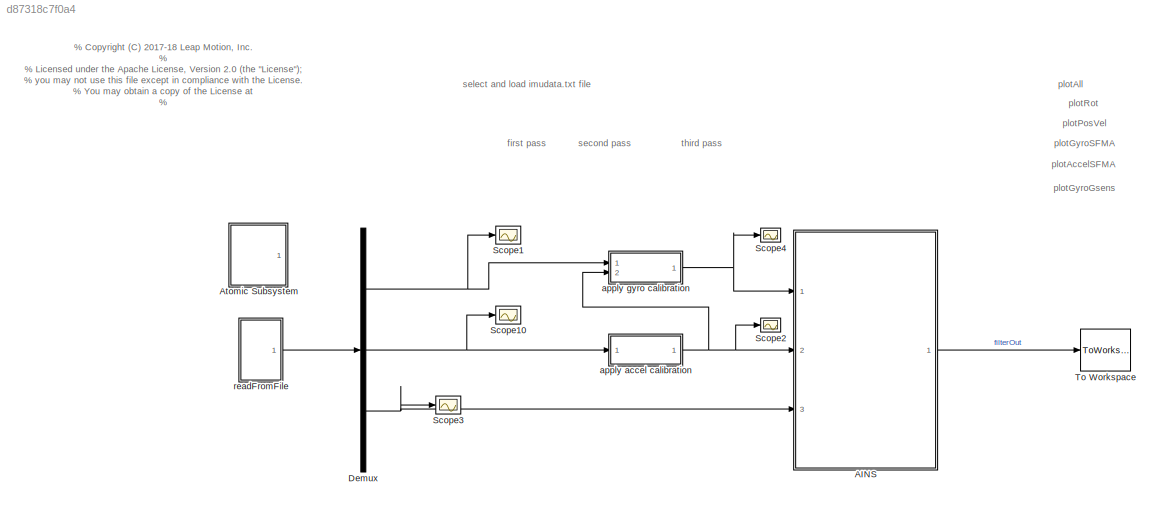
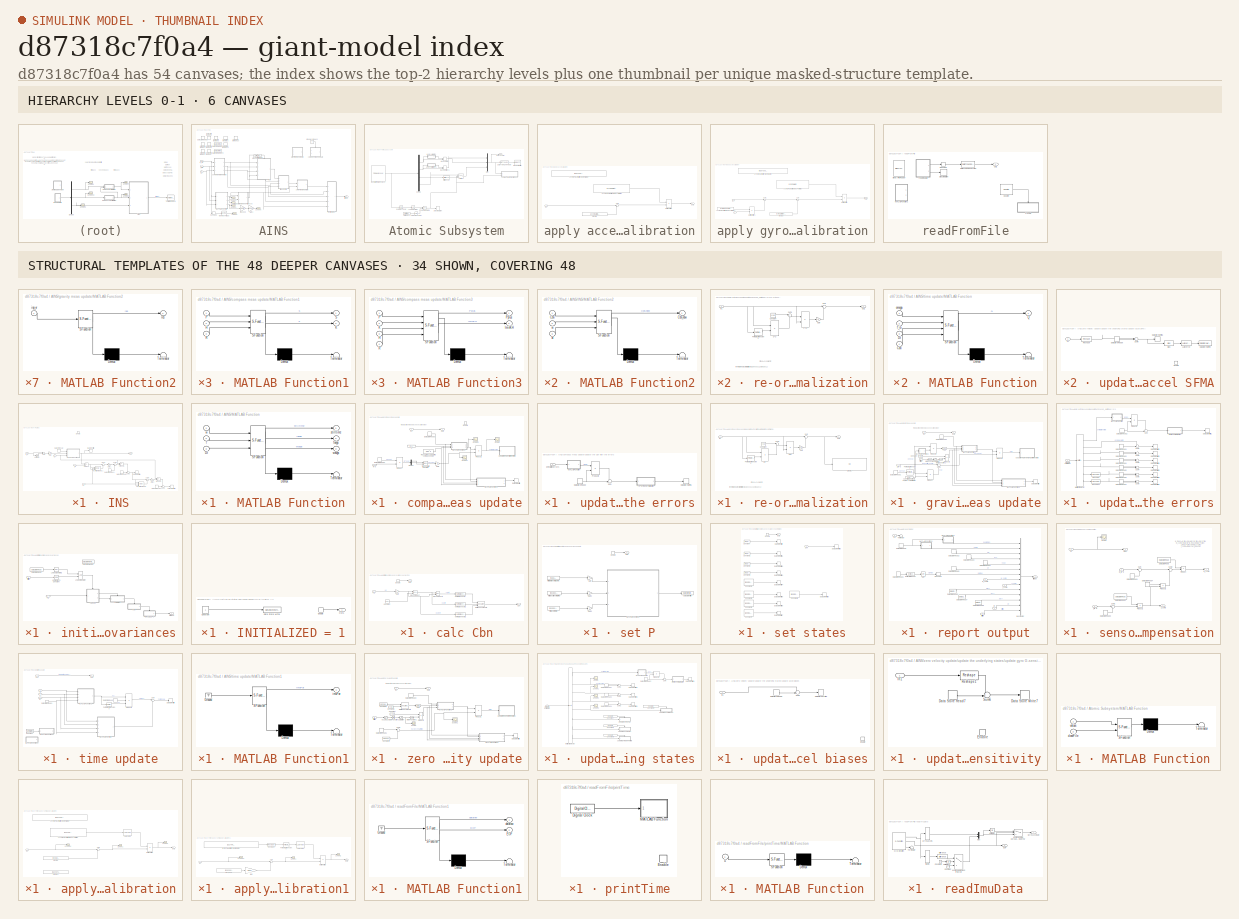
[diagram: thumbnail index - top-2 hierarchy levels (6 canvases) + 34 structural-template representatives of the remaining 48 canvases]
MODEL slx_d87318c7f0a4
KIND model
CONFIG AbsTol = auto
CONFIG EnableMultiTasking = off
CONFIG FixedStep = 1/Fss
CONFIG MaxStep = auto
CONFIG MinStep = auto
CONFIG PreLoadFcn = modelDef = getModelDef();\nFss = 1;  % nominal IMU sampling rate\n\ngyroCalBiases = [0;0;0];\ngyroCalMatrix = eye(3);\ngyroGsensMatrix = zeros(3,3);\n\naccelCalBiases = [0;0;0];\naccelCalMatrix = eye(3);\n\nimuPar = getImuPar('lmvpUncalibrated');\n\nlastUsedMgyr = zeros(3,3);\n\n
CONFIG RelTol = 1e-3
CONFIG SampleTimeConstraint = Unconstrained
CONFIG Solver = FixedStepDiscrete
CONFIG SolverName = FixedStepDiscrete
CONFIG StartTime = 0.0
CONFIG StopTime = inf
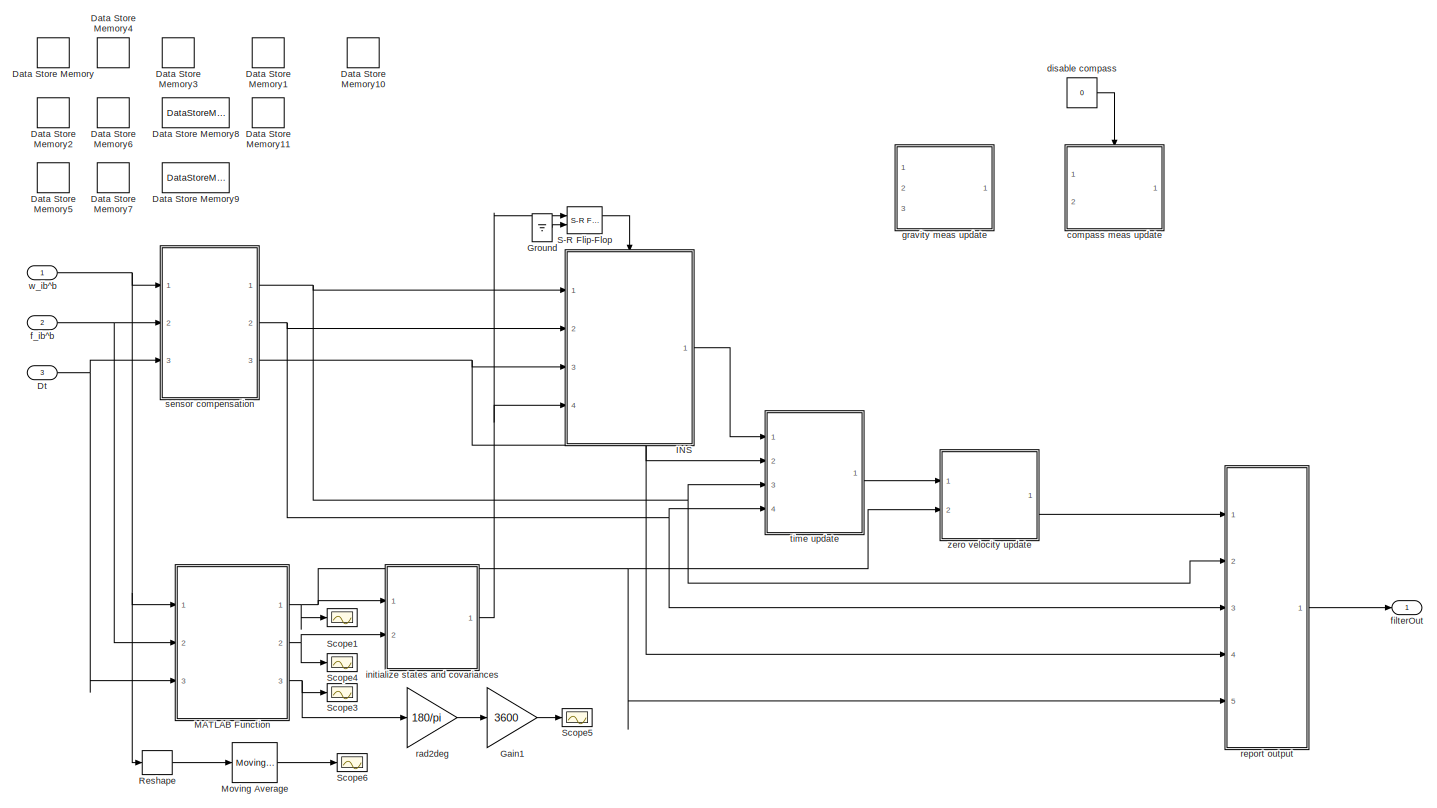
[diagram: AINS - part 1/1, most of the canvas]
BLOCK [SubSystem] AINS
  Ports = [3, 1]
  RequestExecContextInheritance = off
  TreatAsAtomicUnit = on
BLOCK [DataStoreMemory] AINS/Data Store Memory
  DataStoreName = Cbn
  InitialValue = eye(3)
  ReadBeforeWriteMsg = warning
  ShowAdditionalParam = off
  VectorParams1D = off
  WriteAfterReadMsg = warning
  WriteAfterWriteMsg = warning
BLOCK [DataStoreMemory] AINS/Data Store Memory1
  DataStoreName = P
  InitialValue = eye(modelDef.numStates)*1e-12
  ReadBeforeWriteMsg = warning
  ShowAdditionalParam = off
  WriteAfterReadMsg = warning
  WriteAfterWriteMsg = warning
BLOCK [DataStoreMemory] AINS/Data Store Memory10
  DataStoreName = gnav
  InitialValue = [0;0; 9.8065]
  ReadBeforeWriteMsg = warning
  ShowAdditionalParam = off
  VectorParams1D = off
  WriteAfterReadMsg = warning
  WriteAfterWriteMsg = warning
BLOCK [DataStoreMemory] AINS/Data Store Memory11
  DataStoreName = Ggyr
  InitialValue = zeros(3,3)
  ReadBeforeWriteMsg = warning
  ShowAdditionalParam = off
  VectorParams1D = off
  WriteAfterReadMsg = warning
  WriteAfterWriteMsg = warning
BLOCK [DataStoreMemory] AINS/Data Store Memory2
  DataStoreName = dw
  InitialValue = [0;0;0]
  ReadBeforeWriteMsg = warning
  ShowAdditionalParam = off
  VectorParams1D = off
  WriteAfterReadMsg = warning
  WriteAfterWriteMsg = warning
BLOCK [DataStoreMemory] AINS/Data Store Memory3
  DataStoreName = vnav
  InitialValue = [0;0;0]
  ReadBeforeWriteMsg = warning
  ShowAdditionalParam = off
  VectorParams1D = off
  WriteAfterReadMsg = warning
  WriteAfterWriteMsg = warning
BLOCK [DataStoreMemory] AINS/Data Store Memory4
  DataStoreName = rnav
  InitialValue = [0;0;0]
  ReadBeforeWriteMsg = warning
  ShowAdditionalParam = off
  VectorParams1D = off
  WriteAfterReadMsg = warning
  WriteAfterWriteMsg = warning
BLOCK [DataStoreMemory] AINS/Data Store Memory5
  DataStoreName = df
  InitialValue = [0;0;0]
  ReadBeforeWriteMsg = warning
  ShowAdditionalParam = off
  VectorParams1D = off
  WriteAfterReadMsg = warning
  WriteAfterWriteMsg = warning
BLOCK [DataStoreMemory] AINS/Data Store Memory6
  DataStoreName = Mgyr
  InitialValue = zeros(3,3)
  ReadBeforeWriteMsg = warning
  ShowAdditionalParam = off
  VectorParams1D = off
  WriteAfterReadMsg = warning
  WriteAfterWriteMsg = warning
BLOCK [DataStoreMemory] AINS/Data Store Memory7
  DataStoreName = Macc
  InitialValue = zeros(3,3)
  ReadBeforeWriteMsg = warning
  ShowAdditionalParam = off
  VectorParams1D = off
  WriteAfterReadMsg = warning
  WriteAfterWriteMsg = warning
BLOCK [DataStoreMemory] AINS/Data Store Memory8
  DataStoreName = IplusMinv_gyr
  InitialValue = eye(3)
  ReadBeforeWriteMsg = warning
  ShowAdditionalParam = off
  VectorParams1D = off
  WriteAfterReadMsg = warning
  WriteAfterWriteMsg = warning
BLOCK [DataStoreMemory] AINS/Data Store Memory9
  DataStoreName = IplusMinv_acc
  InitialValue = eye(3)
  ReadBeforeWriteMsg = warning
  ShowAdditionalParam = off
  VectorParams1D = off
  WriteAfterReadMsg = warning
  WriteAfterWriteMsg = warning
BLOCK [Inport] AINS/Dt
  IconDisplay = Port number
  Port = 3
  Unit = rad/s
BLOCK [Gain] AINS/Gain1
  Gain = 3600
  OutDataTypeStr = Inherit: Inherit via internal rule
  ParamDataTypeStr = Inherit: Inherit via internal rule
  SaturateOnIntegerOverflow = off
BLOCK [Ground] AINS/Ground
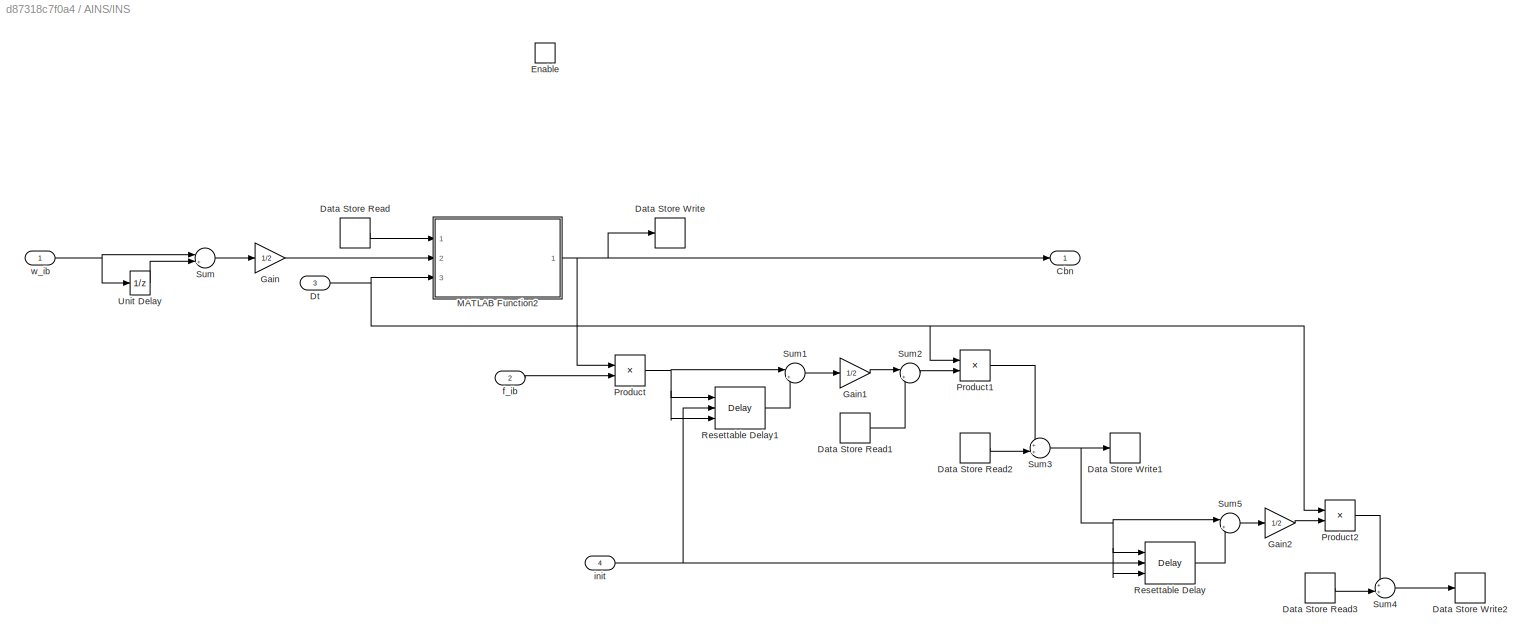
BLOCK [SubSystem] AINS/INS
  Ports = [4, 1, 1]
  Priority = 2
  RequestExecContextInheritance = off
BLOCK [Outport] AINS/INS/Cbn
  IconDisplay = Port number
BLOCK [DataStoreRead] AINS/INS/Data Store Read
  DataStoreName = Cbn
  Ports = [0, 1]
BLOCK [DataStoreRead] AINS/INS/Data Store Read1
  DataStoreName = gnav
  Ports = [0, 1]
BLOCK [DataStoreRead] AINS/INS/Data Store Read2
  DataStoreName = vnav
  Ports = [0, 1]
BLOCK [DataStoreRead] AINS/INS/Data Store Read3
  DataStoreName = rnav
  Ports = [0, 1]
BLOCK [DataStoreWrite] AINS/INS/Data Store Write
  DataStoreName = Cbn
  Ports = [1]
BLOCK [DataStoreWrite] AINS/INS/Data Store Write1
  DataStoreName = vnav
  Ports = [1]
BLOCK [DataStoreWrite] AINS/INS/Data Store Write2
  DataStoreName = rnav
  Ports = [1]
BLOCK [Inport] AINS/INS/Dt
  IconDisplay = Port number
  Port = 3
BLOCK [EnablePort] AINS/INS/Enable
  Ports = []
BLOCK [Gain] AINS/INS/Gain
  Gain = 1/2
  OutDataTypeStr = Inherit: Inherit via internal rule
  ParamDataTypeStr = Inherit: Inherit via internal rule
  SaturateOnIntegerOverflow = off
BLOCK [Gain] AINS/INS/Gain1
  Gain = 1/2
  OutDataTypeStr = Inherit: Inherit via internal rule
  ParamDataTypeStr = Inherit: Inherit via internal rule
  SaturateOnIntegerOverflow = off
BLOCK [Gain] AINS/INS/Gain2
  Gain = 1/2
  OutDataTypeStr = Inherit: Inherit via internal rule
  ParamDataTypeStr = Inherit: Inherit via internal rule
  SaturateOnIntegerOverflow = off
BLOCK [SubSystem] AINS/INS/MATLAB Function2
  ErrorFcn = Stateflow.Translate.translate
  PermitHierarchicalResolution = ExplicitOnly
  Ports = [3, 1]
  RequestExecContextInheritance = off
  SFBlockType = MATLAB Function
  TreatAsAtomicUnit = on
BLOCK [Demux] AINS/INS/MATLAB Function2/ Demux 
  Outputs = 1
  Ports = [1, 1]
BLOCK [S-Function] AINS/INS/MATLAB Function2/ SFunction 
  EnableBusSupport = on
  FunctionName = sf_sfun
  PortCounts = [3 2]
  Ports = [3, 2]
  SFcnIsStateOwnerBlock = off
  SFunctionDeploymentMode = off
  Tag = Stateflow S-Function ImuCalibrator 1
BLOCK [Terminator] AINS/INS/MATLAB Function2/ Terminator 
BLOCK [Inport] AINS/INS/MATLAB Function2/Cbn
  IconDisplay = Port number
BLOCK [Outport] AINS/INS/MATLAB Function2/Cbn_new
  IconDisplay = Port number
BLOCK [Inport] AINS/INS/MATLAB Function2/dt
  IconDisplay = Port number
  Port = 3
BLOCK [Inport] AINS/INS/MATLAB Function2/w
  IconDisplay = Port number
  Port = 2
BLOCK [Product] AINS/INS/Product
  InputSameDT = off
  Multiplication = Matrix(*)
  OutDataTypeStr = Inherit: Inherit via internal rule
  Ports = [2, 1]
  RndMeth = Floor
  SaturateOnIntegerOverflow = off
BLOCK [Product] AINS/INS/Product1
  InputSameDT = off
  OutDataTypeStr = Inherit: Inherit via internal rule
  Ports = [2, 1]
  RndMeth = Floor
  SaturateOnIntegerOverflow = off
BLOCK [Product] AINS/INS/Product2
  InputSameDT = off
  OutDataTypeStr = Inherit: Inherit via internal rule
  Ports = [2, 1]
  RndMeth = Floor
  SaturateOnIntegerOverflow = off
BLOCK [Delay] AINS/INS/Resettable Delay
  DelayLength = 1
  ExternalReset = Level
  InitialConditionSource = Input port
  InputPortMap = u0,r5,p4
  Ports = [3, 1]
BLOCK [Delay] AINS/INS/Resettable Delay1
  DelayLength = 1
  ExternalReset = Level
  InitialConditionSource = Input port
  InputPortMap = u0,r5,p4
  Ports = [3, 1]
BLOCK [Sum] AINS/INS/Sum
  IconShape = round
  InputSameDT = off
  Inputs = |++
  OutDataTypeStr = Inherit: Inherit via internal rule
  Ports = [2, 1]
  SaturateOnIntegerOverflow = off
BLOCK [Sum] AINS/INS/Sum1
  IconShape = round
  InputSameDT = off
  Inputs = |++
  OutDataTypeStr = Inherit: Inherit via internal rule
  Ports = [2, 1]
  SaturateOnIntegerOverflow = off
BLOCK [Sum] AINS/INS/Sum2
  IconShape = round
  InputSameDT = off
  Inputs = |++
  OutDataTypeStr = Inherit: Inherit via internal rule
  Ports = [2, 1]
  SaturateOnIntegerOverflow = off
BLOCK [Sum] AINS/INS/Sum3
  IconShape = round
  InputSameDT = off
  Inputs = ++|
  OutDataTypeStr = Inherit: Inherit via internal rule
  Ports = [2, 1]
  SaturateOnIntegerOverflow = off
BLOCK [Sum] AINS/INS/Sum4
  IconShape = round
  InputSameDT = off
  Inputs = ++|
  OutDataTypeStr = Inherit: Inherit via internal rule
  Ports = [2, 1]
  SaturateOnIntegerOverflow = off
BLOCK [Sum] AINS/INS/Sum5
  IconShape = round
  InputSameDT = off
  Inputs = |++
  OutDataTypeStr = Inherit: Inherit via internal rule
  Ports = [2, 1]
  SaturateOnIntegerOverflow = off
BLOCK [UnitDelay] AINS/INS/Unit Delay
  InputProcessing = Elements as channels (sample based)
  SampleTime = -1
BLOCK [Inport] AINS/INS/f_ib
  IconDisplay = Port number
  Port = 2
BLOCK [Inport] AINS/INS/init
  IconDisplay = Port number
  Port = 4
BLOCK [Inport] AINS/INS/w_ib
  IconDisplay = Port number
BLOCK [SubSystem] AINS/MATLAB Function
  ErrorFcn = Stateflow.Translate.translate
  PermitHierarchicalResolution = ExplicitOnly
  Ports = [3, 3]
  RequestExecContextInheritance = off
  SFBlockType = MATLAB Function
  TreatAsAtomicUnit = on
BLOCK [Demux] AINS/MATLAB Function/ Demux 
  Outputs = 1
  Ports = [1, 1]
BLOCK [S-Function] AINS/MATLAB Function/ SFunction 
  EnableBusSupport = on
  FunctionName = sf_sfun
  PortCounts = [3 4]
  Ports = [3, 4]
  SFcnIsStateOwnerBlock = off
  SFunctionDeploymentMode = off
  Tag = Stateflow S-Function ImuCalibrator 5
BLOCK [Terminator] AINS/MATLAB Function/ Terminator 
BLOCK [Inport] AINS/MATLAB Function/Dt
  IconDisplay = Port number
  Port = 3
BLOCK [Inport] AINS/MATLAB Function/f
  IconDisplay = Port number
  Port = 2
BLOCK [Outport] AINS/MATLAB Function/favgs
  IconDisplay = Port number
  Port = 2
BLOCK [Outport] AINS/MATLAB Function/stilltime
  IconDisplay = Port number
BLOCK [Inport] AINS/MATLAB Function/w
  IconDisplay = Port number
BLOCK [Outport] AINS/MATLAB Function/wavgs
  IconDisplay = Port number
  Port = 3
BLOCK [Reference] AINS/Moving Average  REF=dspstat3/Moving
Average
  Ports = [1, 1]
  SourceBlock = dspstat3/Moving\nAverage
  SourceProductBaseCode = DS
  SourceProductName = DSP System Toolbox
  SourceType = dsp.simulink.MovingAverage
BLOCK [Reshape] AINS/Reshape
  OutputDimensionality = Row vector (2-D)
  Ports = [1, 1]
BLOCK [Reference] AINS/S-R Flip-Flop  REF=simulink_extras/Flip Flops/S-R
Flip-Flop
  Ports = [2, 2]
  SourceBlock = simulink_extras/Flip Flops/S-R\nFlip-Flop
  SourceProductBaseCode = SL
  SourceProductName = Simulink
  SourceType = SRFlipFlop
BLOCK [Scope] AINS/Scope1
  Floating = off
  NumInputPorts = 1
  Ports = [1]
  ScopeSpecificationString = Simulink.scopes.TimeScopeBlockCfg('CurrentConfiguration', extmgr.ConfigurationSet(extmgr.Configuration('Core','General UI',true),extmgr.Configuration('Core','Source UI',true),extmgr.Configuration('Sources','WiredSimulink',true,'DataLoggingVariableName','ScopeData1'),extmgr.Configuration('Visuals','Time Domain',true,'SerializedDisplays',{struct('MinYLimReal','-1.62803','MaxYLimReal','14.65226','YLa...<+1432ch>
BLOCK [Scope] AINS/Scope3
  Floating = off
  NumInputPorts = 1
  Ports = [1]
  ScopeSpecificationString = Simulink.scopes.TimeScopeBlockCfg('CurrentConfiguration', extmgr.ConfigurationSet(extmgr.Configuration('Core','General UI',true),extmgr.Configuration('Core','Source UI',true),extmgr.Configuration('Sources','WiredSimulink',true,'DataLoggingVariableName','ScopeData1'),extmgr.Configuration('Visuals','Time Domain',true,'SerializedDisplays',{struct('MinYLimReal','0.00569','MaxYLimReal','0.00754','YLabe...<+1474ch>
BLOCK [Scope] AINS/Scope4
  Floating = off
  NumInputPorts = 1
  Ports = [1]
  ScopeSpecificationString = Simulink.scopes.TimeScopeBlockCfg('CurrentConfiguration', extmgr.ConfigurationSet(extmgr.Configuration('Core','General UI',true),extmgr.Configuration('Core','Source UI',true),extmgr.Configuration('Sources','WiredSimulink',true,'DataLoggingVariableName','ScopeData2'),extmgr.Configuration('Visuals','Time Domain',true,'SerializedDisplays',{struct('MinYLimReal','0.00976','MaxYLimReal','4.15684','YLabe...<+1451ch>
BLOCK [Scope] AINS/Scope5
  Floating = off
  NumInputPorts = 1
  Ports = [1]
  ScopeSpecificationString = Simulink.scopes.TimeScopeBlockCfg('CurrentConfiguration', extmgr.ConfigurationSet(extmgr.Configuration('Core','General UI',true),extmgr.Configuration('Core','Source UI',true),extmgr.Configuration('Sources','WiredSimulink',true,'DataLoggingVariableName','ScopeData3'),extmgr.Configuration('Visuals','Time Domain',true,'SerializedDisplays',{struct('MinYLimReal','-12577122.92707','MaxYLimReal','1282866...<+1512ch>
BLOCK [Scope] AINS/Scope6
  Floating = off
  NumInputPorts = 1
  Ports = [1]
  ScopeSpecificationString = Simulink.scopes.TimeScopeBlockCfg('CurrentConfiguration', extmgr.ConfigurationSet(extmgr.Configuration('Core','General UI',true),extmgr.Configuration('Core','Source UI',true),extmgr.Configuration('Sources','WiredSimulink',true,'DataLoggingVariableName','ScopeData4'),extmgr.Configuration('Visuals','Time Domain',true,'SerializedDisplays',{struct('MinYLimReal','-53.21964','MaxYLimReal','54.50232','YL...<+1491ch>
BLOCK [SubSystem] AINS/compass meas update
  Commented = on
  Ports = [2, 1, 1]
  RequestExecContextInheritance = off
  TreatAsAtomicUnit = on
BLOCK [DataStoreRead] AINS/compass meas update/Data Store Read1
  DataStoreName = Cbn
  Ports = [0, 1]
BLOCK [DataStoreRead] AINS/compass meas update/Data Store Read3
  DataStoreName = P
  Ports = [0, 1]
BLOCK [DataStoreWrite] AINS/compass meas update/Data Store Write
  DataStoreName = P
  Ports = [1]
BLOCK [Demux] AINS/compass meas update/Demux
  DisplayOption = bar
  Outputs = 3
  Ports = [1, 3]
BLOCK [EnablePort] AINS/compass meas update/Enable
  Ports = []
BLOCK [Gain] AINS/compass meas update/Gain
  Gain = -1
  OutDataTypeStr = Inherit: Inherit via internal rule
  ParamDataTypeStr = Inherit: Inherit via internal rule
  SaturateOnIntegerOverflow = off
BLOCK [Constant] AINS/compass meas update/H
  Value = [ 0 0 1]
  VectorParams1D = off
BLOCK [Inport] AINS/compass meas update/In1
  IconDisplay = Port number
BLOCK [SubSystem] AINS/compass meas update/MATLAB Function1
  ErrorFcn = Stateflow.Translate.translate
  PermitHierarchicalResolution = ExplicitOnly
  Ports = [3, 2]
  RequestExecContextInheritance = off
  SFBlockType = MATLAB Function
  TreatAsAtomicUnit = on
BLOCK [Demux] AINS/compass meas update/MATLAB Function1/ Demux 
  Outputs = 1
  Ports = [1, 1]
BLOCK [S-Function] AINS/compass meas update/MATLAB Function1/ SFunction 
  EnableBusSupport = on
  FunctionName = sf_sfun
  PortCounts = [3 3]
  Ports = [3, 3]
  SFcnIsStateOwnerBlock = off
  SFunctionDeploymentMode = off
  Tag = Stateflow S-Function ImuCalibrator 27
BLOCK [Terminator] AINS/compass meas update/MATLAB Function1/ Terminator 
BLOCK [Inport] AINS/compass meas update/MATLAB Function1/H
  IconDisplay = Port number
  Port = 2
BLOCK [Outport] AINS/compass meas update/MATLAB Function1/K
  IconDisplay = Port number
  Port = 2
BLOCK [Inport] AINS/compass meas update/MATLAB Function1/P
  IconDisplay = Port number
BLOCK [Inport] AINS/compass meas update/MATLAB Function1/R
  IconDisplay = Port number
  Port = 3
BLOCK [Outport] AINS/compass meas update/MATLAB Function1/S
  IconDisplay = Port number
BLOCK [SubSystem] AINS/compass meas update/MATLAB Function3
  ErrorFcn = Stateflow.Translate.translate
  PermitHierarchicalResolution = ExplicitOnly
  Ports = [4, 2]
  RequestExecContextInheritance = off
  SFBlockType = MATLAB Function
  TreatAsAtomicUnit = on
BLOCK [Demux] AINS/compass meas update/MATLAB Function3/ Demux 
  Outputs = 1
  Ports = [1, 1]
BLOCK [S-Function] AINS/compass meas update/MATLAB Function3/ SFunction 
  EnableBusSupport = on
  FunctionName = sf_sfun
  PortCounts = [4 3]
  Ports = [4, 3]
  SFcnIsStateOwnerBlock = off
  SFunctionDeploymentMode = off
  Tag = Stateflow S-Function ImuCalibrator 33
BLOCK [Terminator] AINS/compass meas update/MATLAB Function3/ Terminator 
BLOCK [Inport] AINS/compass meas update/MATLAB Function3/H
  IconDisplay = Port number
  Port = 3
BLOCK [Outport] AINS/compass meas update/MATLAB Function3/IminKH
  IconDisplay = Port number
  Port = 2
BLOCK [Inport] AINS/compass meas update/MATLAB Function3/K
  IconDisplay = Port number
  Port = 2
BLOCK [Inport] AINS/compass meas update/MATLAB Function3/P
  IconDisplay = Port number
BLOCK [Outport] AINS/compass meas update/MATLAB Function3/Pplus
  IconDisplay = Port number
BLOCK [Inport] AINS/compass meas update/MATLAB Function3/R
  IconDisplay = Port number
  Port = 4
BLOCK [Outport] AINS/compass meas update/Out1
  IconDisplay = Port number
BLOCK [Product] AINS/compass meas update/Product
  InputSameDT = off
  Multiplication = Matrix(*)
  OutDataTypeStr = Inherit: Inherit via internal rule
  Ports = [2, 1]
  RndMeth = Floor
  SaturateOnIntegerOverflow = off
BLOCK [Product] AINS/compass meas update/Product1
  InputSameDT = off
  Multiplication = Matrix(*)
  OutDataTypeStr = Inherit: Inherit via internal rule
  Ports = [2, 1]
  RndMeth = Floor
  SaturateOnIntegerOverflow = off
BLOCK [Constant] AINS/compass meas update/R assumes 10 deg rms compass noise
  Value = 0.34^2
BLOCK [Scope] AINS/compass meas update/Scope
  Floating = off
  NumInputPorts = 1
  Ports = [1]
  ScopeSpecificationString = Simulink.scopes.TimeScopeBlockCfg('CurrentConfiguration', extmgr.ConfigurationSet(extmgr.Configuration('Core','General UI',true),extmgr.Configuration('Core','Source UI',true),extmgr.Configuration('Sources','WiredSimulink',true,'DataLoggingVariableName','ScopeData3'),extmgr.Configuration('Visuals','Time Domain',true,'SerializedDisplays',{struct('MinYLimReal','-1.02533','MaxYLimReal','0.98365','YLab...<+1503ch>
BLOCK [Scope] AINS/compass meas update/Scope1
  Floating = off
  NumInputPorts = 1
  Ports = [1]
  ScopeSpecificationString = Simulink.scopes.TimeScopeBlockCfg('CurrentConfiguration', extmgr.ConfigurationSet(extmgr.Configuration('Core','General UI',true),extmgr.Configuration('Core','Source UI',true),extmgr.Configuration('Sources','WiredSimulink',true,'DataLoggingVariableName','ScopeData10'),extmgr.Configuration('Visuals','Time Domain',true,'SerializedDisplays',{struct('MinYLimReal','-0.05049','MaxYLimReal','0.04542','YLa...<+1408ch>
BLOCK [Scope] AINS/compass meas update/Scope2
  Floating = off
  NumInputPorts = 1
  Ports = [1]
  ScopeSpecificationString = Simulink.scopes.TimeScopeBlockCfg('CurrentConfiguration', extmgr.ConfigurationSet(extmgr.Configuration('Core','General UI',true),extmgr.Configuration('Core','Source UI',true),extmgr.Configuration('Sources','WiredSimulink',true,'DataLoggingVariableName','ScopeData12'),extmgr.Configuration('Visuals','Time Domain',true,'SerializedDisplays',{struct('MinYLimReal','-0.119','MaxYLimReal','1.07099','YLabe...<+1466ch>
BLOCK [Trigonometry] AINS/compass meas update/Trigonometric Function
  Operator = atan2
  Ports = [2, 1]
BLOCK [Inport] AINS/compass meas update/m^b
  IconDisplay = Port number
  Port = 2
BLOCK [SubSystem] AINS/compass meas update/update the Cbn with the errors
  Ports = [1]
  RequestExecContextInheritance = off
BLOCK [DataStoreRead] AINS/compass meas update/update the Cbn with the errors/Data Store Read2
  DataStoreName = Cbn
  Ports = [0, 1]
BLOCK [DataStoreWrite] AINS/compass meas update/update the Cbn with the errors/Data Store Write1
  DataStoreName = Cbn
  Ports = [1]
BLOCK [SubSystem] AINS/compass meas update/update the Cbn with the errors/MATLAB Function
  ErrorFcn = Stateflow.Translate.translate
  PermitHierarchicalResolution = ExplicitOnly
  Ports = [1, 1]
  RequestExecContextInheritance = off
  SFBlockType = MATLAB Function
  TreatAsAtomicUnit = on
BLOCK [Demux] AINS/compass meas update/update the Cbn with the errors/MATLAB Function/ Demux 
  Outputs = 1
  Ports = [1, 1]
BLOCK [S-Function] AINS/compass meas update/update the Cbn with the errors/MATLAB Function/ SFunction 
  EnableBusSupport = on
  FunctionName = sf_sfun
  PortCounts = [1 2]
  Ports = [1, 2]
  SFcnIsStateOwnerBlock = off
  SFunctionDeploymentMode = off
  Tag = Stateflow S-Function ImuCalibrator 36
BLOCK [Terminator] AINS/compass meas update/update the Cbn with the errors/MATLAB Function/ Terminator 
BLOCK [Inport] AINS/compass meas update/update the Cbn with the errors/MATLAB Function/inp_vr
  IconDisplay = Port number
BLOCK [Outport] AINS/compass meas update/update the Cbn with the errors/MATLAB Function/res
  IconDisplay = Port number
BLOCK [Product] AINS/compass meas update/update the Cbn with the errors/Product2
  InputSameDT = off
  Multiplication = Matrix(*)
  OutDataTypeStr = Inherit: Inherit via internal rule
  Ports = [2, 1]
  RndMeth = Floor
  SaturateOnIntegerOverflow = off
BLOCK [Sum] AINS/compass meas update/update the Cbn with the errors/Sum
  IconShape = round
  InputSameDT = off
  Inputs = ++|
  OutDataTypeStr = Inherit: Inherit via internal rule
  Ports = [2, 1]
  SaturateOnIntegerOverflow = off
BLOCK [Inport] AINS/compass meas update/update the Cbn with the errors/phi  rotation errors
  IconDisplay = Port number
BLOCK [SubSystem] AINS/compass meas update/update the Cbn with the errors/re-orthonormalization
  Ports = [1, 1]
  RequestExecContextInheritance = off
  TreatAsAtomicUnit = on
BLOCK [Product] AINS/compass meas update/update the Cbn with the errors/re-orthonormalization/C*C'
  InputSameDT = off
  Multiplication = Matrix(*)
  OutDataTypeStr = Inherit: Inherit via internal rule
  Ports = [2, 1]
  RndMeth = Floor
  SaturateOnIntegerOverflow = off
BLOCK [Product] AINS/compass meas update/update the Cbn with the errors/re-orthonormalization/C*C'1
  InputSameDT = off
  Multiplication = Matrix(*)
  OutDataTypeStr = Inherit: Inherit via internal rule
  Ports = [2, 1]
  RndMeth = Floor
  SaturateOnIntegerOverflow = off
BLOCK [Constant] AINS/compass meas update/update the Cbn with the errors/re-orthonormalization/Constant
  Value = eye(3)
BLOCK [Display] AINS/compass meas update/update the Cbn with the errors/re-orthonormalization/Display
  Decimation = 1
  Ports = [1]
BLOCK [Gain] AINS/compass meas update/update the Cbn with the errors/re-orthonormalization/Gain
  Gain = 1/2
  OutDataTypeStr = Inherit: Inherit via internal rule
  ParamDataTypeStr = Inherit: Inherit via internal rule
  SaturateOnIntegerOverflow = off
BLOCK [Inport] AINS/compass meas update/update the Cbn with the errors/re-orthonormalization/In1
  IconDisplay = Port number
BLOCK [Outport] AINS/compass meas update/update the Cbn with the errors/re-orthonormalization/Out1
  IconDisplay = Port number
BLOCK [PermuteDimensions] AINS/compass meas update/update the Cbn with the errors/re-orthonormalization/Permute Dimensions
BLOCK [Sum] AINS/compass meas update/update the Cbn with the errors/re-orthonormalization/Sum
  IconShape = round
  InputSameDT = off
  Inputs = |++
  OutDataTypeStr = Inherit: Inherit via internal rule
  Ports = [2, 1]
  SaturateOnIntegerOverflow = off
BLOCK [Sum] AINS/compass meas update/update the Cbn with the errors/re-orthonormalization/Sum1
  IconShape = round
  InputSameDT = off
  Inputs = |+-
  OutDataTypeStr = Inherit: Inherit via internal rule
  Ports = [2, 1]
  SaturateOnIntegerOverflow = off
BLOCK [Constant] AINS/disable compass
  Commented = on
  Value = 0
BLOCK [Inport] AINS/f_ib^b
  IconDisplay = Port number
  Port = 2
  PortDimensions = 3
  Unit = m/s^2
BLOCK [Outport] AINS/filterOut
  IconDisplay = Port number
BLOCK [SubSystem] AINS/gravity meas update
  Commented = on
  Ports = [3, 1]
  RequestExecContextInheritance = off
  TreatAsAtomicUnit = on
BLOCK [Constant] AINS/gravity meas update/Constant
  Value = eye(3)
BLOCK [DataStoreRead] AINS/gravity meas update/Data Store Read1
  DataStoreName = Cbn
  Ports = [0, 1]
BLOCK [DataStoreRead] AINS/gravity meas update/Data Store Read3
  DataStoreName = P
  Ports = [0, 1]
BLOCK [DataStoreWrite] AINS/gravity meas update/Data Store Write
  DataStoreName = P
  Ports = [1]
BLOCK [Inport] AINS/gravity meas update/In1
  IconDisplay = Port number
BLOCK [SubSystem] AINS/gravity meas update/MATLAB Function1
  ErrorFcn = Stateflow.Translate.translate
  PermitHierarchicalResolution = ExplicitOnly
  Ports = [3, 2]
  RTWSystemCode = Reusable function
  RequestExecContextInheritance = off
  SFBlockType = MATLAB Function
  TreatAsAtomicUnit = on
BLOCK [Demux] AINS/gravity meas update/MATLAB Function1/ Demux 
  Outputs = 1
  Ports = [1, 1]
BLOCK [S-Function] AINS/gravity meas update/MATLAB Function1/ SFunction 
  EnableBusSupport = on
  FunctionName = sf_sfun
  PortCounts = [3 3]
  Ports = [3, 3]
  SFcnIsStateOwnerBlock = off
  SFunctionDeploymentMode = off
  Tag = Stateflow S-Function ImuCalibrator 4
BLOCK [Terminator] AINS/gravity meas update/MATLAB Function1/ Terminator 
BLOCK [Inport] AINS/gravity meas update/MATLAB Function1/H
  IconDisplay = Port number
  Port = 2
BLOCK [Outport] AINS/gravity meas update/MATLAB Function1/K
  IconDisplay = Port number
  Port = 2
BLOCK [Inport] AINS/gravity meas update/MATLAB Function1/P
  IconDisplay = Port number
BLOCK [Inport] AINS/gravity meas update/MATLAB Function1/R
  IconDisplay = Port number
  Port = 3
BLOCK [Outport] AINS/gravity meas update/MATLAB Function1/S
  IconDisplay = Port number
BLOCK [SubSystem] AINS/gravity meas update/MATLAB Function2
  ErrorFcn = Stateflow.Translate.translate
  PermitHierarchicalResolution = ExplicitOnly
  Ports = [1, 1]
  RequestExecContextInheritance = off
  SFBlockType = MATLAB Function
  TreatAsAtomicUnit = on
BLOCK [Demux] AINS/gravity meas update/MATLAB Function2/ Demux 
  Outputs = 1
  Ports = [1, 1]
BLOCK [S-Function] AINS/gravity meas update/MATLAB Function2/ SFunction 
  EnableBusSupport = on
  FunctionName = sf_sfun
  PortCounts = [1 2]
  Ports = [1, 2]
  SFcnIsStateOwnerBlock = off
  SFunctionDeploymentMode = off
  Tag = Stateflow S-Function ImuCalibrator 26
BLOCK [Terminator] AINS/gravity meas update/MATLAB Function2/ Terminator 
BLOCK [Inport] AINS/gravity meas update/MATLAB Function2/inp_vr
  IconDisplay = Port number
BLOCK [Outport] AINS/gravity meas update/MATLAB Function2/res
  IconDisplay = Port number
BLOCK [SubSystem] AINS/gravity meas update/MATLAB Function3
  ErrorFcn = Stateflow.Translate.translate
  PermitHierarchicalResolution = ExplicitOnly
  Ports = [4, 2]
  RTWSystemCode = Reusable function
  RequestExecContextInheritance = off
  SFBlockType = MATLAB Function
  TreatAsAtomicUnit = on
BLOCK [Demux] AINS/gravity meas update/MATLAB Function3/ Demux 
  Outputs = 1
  Ports = [1, 1]
BLOCK [S-Function] AINS/gravity meas update/MATLAB Function3/ SFunction 
  EnableBusSupport = on
  FunctionName = sf_sfun
  PortCounts = [4 3]
  Ports = [4, 3]
  SFcnIsStateOwnerBlock = off
  SFunctionDeploymentMode = off
  Tag = Stateflow S-Function ImuCalibrator 13
BLOCK [Terminator] AINS/gravity meas update/MATLAB Function3/ Terminator 
BLOCK [Inport] AINS/gravity meas update/MATLAB Function3/H
  IconDisplay = Port number
  Port = 3
BLOCK [Outport] AINS/gravity meas update/MATLAB Function3/IminKH
  IconDisplay = Port number
  Port = 2
BLOCK [Inport] AINS/gravity meas update/MATLAB Function3/K
  IconDisplay = Port number
  Port = 2
BLOCK [Inport] AINS/gravity meas update/MATLAB Function3/P
  IconDisplay = Port number
BLOCK [Outport] AINS/gravity meas update/MATLAB Function3/Pplus
  IconDisplay = Port number
BLOCK [Inport] AINS/gravity meas update/MATLAB Function3/R
  IconDisplay = Port number
  Port = 4
BLOCK [Math] AINS/gravity meas update/Math Function
  Operator = reciprocal
  Ports = [1, 1]
BLOCK [Math] AINS/gravity meas update/Math Function1
  Operator = square
  Ports = [1, 1]
BLOCK [Outport] AINS/gravity meas update/Out1
  IconDisplay = Port number
BLOCK [Reference] AINS/gravity meas update/Pad  REF=dspsigops/Pad
  Ports = [1, 1]
  SourceBlock = dspsigops/Pad
  SourceProductBaseCode = DS
  SourceProductName = DSP System Toolbox
  SourceType = Pad
BLOCK [PermuteDimensions] AINS/gravity meas update/Permute Dimensions
BLOCK [Product] AINS/gravity meas update/Product
  InputSameDT = off
  Multiplication = Matrix(*)
  OutDataTypeStr = Inherit: Inherit via internal rule
  Ports = [2, 1]
  RndMeth = Floor
  SaturateOnIntegerOverflow = off
BLOCK [Product] AINS/gravity meas update/Product1
  InputSameDT = off
  Multiplication = Matrix(*)
  OutDataTypeStr = Inherit: Inherit via internal rule
  Ports = [2, 1]
  RndMeth = Floor
  SaturateOnIntegerOverflow = off
BLOCK [Product] AINS/gravity meas update/Product2
  InputSameDT = off
  OutDataTypeStr = Inherit: Inherit via internal rule
  Ports = [2, 1]
  RndMeth = Floor
  SaturateOnIntegerOverflow = off
BLOCK [Product] AINS/gravity meas update/Product3
  InputSameDT = off
  Multiplication = Matrix(*)
  OutDataTypeStr = Inherit: Inherit via internal rule
  Ports = [2, 1]
  RndMeth = Floor
  SaturateOnIntegerOverflow = off
BLOCK [Saturate] AINS/gravity meas update/Saturation
  InputPortMap = u0
  LowerLimit = 1
  Ports = [1, 1]
  UpperLimit = 9.8*4
BLOCK [Sum] AINS/gravity meas update/Sum1
  IconShape = round
  InputSameDT = off
  Inputs = |+-
  OutDataTypeStr = Inherit: Inherit via internal rule
  Ports = [2, 1]
  SaturateOnIntegerOverflow = off
BLOCK [Inport] AINS/gravity meas update/f_ib^b
  IconDisplay = Port number
  Port = 2
BLOCK [Constant] AINS/gravity meas update/specific force at rest is up, which is -z in NED frame
  Value = [ 0; 0; -9.8]
BLOCK [Inport] AINS/gravity meas update/stilltime
  IconDisplay = Port number
  Port = 3
BLOCK [SubSystem] AINS/gravity meas update/update the Cbn and b_g with the errors
  Ports = [1]
  RequestExecContextInheritance = off
BLOCK [Inport] AINS/gravity meas update/update the Cbn and b_g with the errors/ error state estimates
  IconDisplay = Port number
BLOCK [DataStoreRead] AINS/gravity meas update/update the Cbn and b_g with the errors/Data Store Read1
  DataStoreName = dw
  Ports = [0, 1]
BLOCK [DataStoreRead] AINS/gravity meas update/update the Cbn and b_g with the errors/Data Store Read2
  DataStoreName = Cbn
  Ports = [0, 1]
BLOCK [DataStoreRead] AINS/gravity meas update/update the Cbn and b_g with the errors/Data Store Read3
  DataStoreName = rnav
  Ports = [0, 1]
BLOCK [DataStoreRead] AINS/gravity meas update/update the Cbn and b_g with the errors/Data Store Read4
  DataStoreName = vnav
  Ports = [0, 1]
BLOCK [DataStoreRead] AINS/gravity meas update/update the Cbn and b_g with the errors/Data Store Read5
  DataStoreName = df
  Ports = [0, 1]
BLOCK [DataStoreRead] AINS/gravity meas update/update the Cbn and b_g with the errors/Data Store Read6
  DataStoreName = Macc
  Ports = [0, 1]
BLOCK [DataStoreRead] AINS/gravity meas update/update the Cbn and b_g with the errors/Data Store Read7
  DataStoreName = Mgyr
  Ports = [0, 1]
BLOCK [DataStoreWrite] AINS/gravity meas update/update the Cbn and b_g with the errors/Data Store Write1
  DataStoreName = Cbn
  Ports = [1]
BLOCK [DataStoreWrite] AINS/gravity meas update/update the Cbn and b_g with the errors/Data Store Write2
  DataStoreName = dw
  Ports = [1]
BLOCK [DataStoreWrite] AINS/gravity meas update/update the Cbn and b_g with the errors/Data Store Write3
  DataStoreName = rnav
  Ports = [1]
BLOCK [DataStoreWrite] AINS/gravity meas update/update the Cbn and b_g with the errors/Data Store Write4
  DataStoreName = vnav
  Ports = [1]
BLOCK [DataStoreWrite] AINS/gravity meas update/update the Cbn and b_g with the errors/Data Store Write5
  DataStoreName = df
  Ports = [1]
BLOCK [DataStoreWrite] AINS/gravity meas update/update the Cbn and b_g with the errors/Data Store Write6
  DataStoreName = Macc
  Ports = [1]
BLOCK [DataStoreWrite] AINS/gravity meas update/update the Cbn and b_g with the errors/Data Store Write7
  DataStoreName = Mgyr
  Ports = [1]
BLOCK [SubSystem] AINS/gravity meas update/update the Cbn and b_g with the errors/MATLAB Function
  ErrorFcn = Stateflow.Translate.translate
  PermitHierarchicalResolution = ExplicitOnly
  Ports = [1, 1]
  RequestExecContextInheritance = off
  SFBlockType = MATLAB Function
  TreatAsAtomicUnit = on
BLOCK [Demux] AINS/gravity meas update/update the Cbn and b_g with the errors/MATLAB Function/ Demux 
  Outputs = 1
  Ports = [1, 1]
BLOCK [S-Function] AINS/gravity meas update/update the Cbn and b_g with the errors/MATLAB Function/ SFunction 
  EnableBusSupport = on
  FunctionName = sf_sfun
  PortCounts = [1 2]
  Ports = [1, 2]
  SFcnIsStateOwnerBlock = off
  SFunctionDeploymentMode = off
  Tag = Stateflow S-Function ImuCalibrator 3
BLOCK [Terminator] AINS/gravity meas update/update the Cbn and b_g with the errors/MATLAB Function/ Terminator 
BLOCK [Inport] AINS/gravity meas update/update the Cbn and b_g with the errors/MATLAB Function/inp_vr
  IconDisplay = Port number
BLOCK [Outport] AINS/gravity meas update/update the Cbn and b_g with the errors/MATLAB Function/res
  IconDisplay = Port number
BLOCK [Reference] AINS/gravity meas update/update the Cbn and b_g with the errors/Multiport Selector  REF=dspindex/Multiport
Selector
  Ports = [1, 7]
  SourceBlock = dspindex/Multiport\nSelector
  SourceProductBaseCode = DS
  SourceProductName = DSP System Toolbox
  SourceType = Multiport Selector
BLOCK [Product] AINS/gravity meas update/update the Cbn and b_g with the errors/Product2
  InputSameDT = off
  Multiplication = Matrix(*)
  OutDataTypeStr = Inherit: Inherit via internal rule
  Ports = [2, 1]
  RndMeth = Floor
  SaturateOnIntegerOverflow = off
BLOCK [Reshape] AINS/gravity meas update/update the Cbn and b_g with the errors/Reshape
  OutputDimensionality = Customize
  OutputDimensions = [3,3]
  Ports = [1, 1]
BLOCK [Reshape] AINS/gravity meas update/update the Cbn and b_g with the errors/Reshape1
  OutputDimensionality = Customize
  OutputDimensions = [3,3]
  Ports = [1, 1]
BLOCK [Sum] AINS/gravity meas update/update the Cbn and b_g with the errors/Sum
  IconShape = round
  InputSameDT = off
  Inputs = ++|
  OutDataTypeStr = Inherit: Inherit via internal rule
  Ports = [2, 1]
  SaturateOnIntegerOverflow = off
BLOCK [Sum] AINS/gravity meas update/update the Cbn and b_g with the errors/Sum1
  IconShape = round
  InputSameDT = off
  Inputs = ++|
  OutDataTypeStr = Inherit: Inherit via internal rule
  Ports = [2, 1]
  SaturateOnIntegerOverflow = off
BLOCK [Sum] AINS/gravity meas update/update the Cbn and b_g with the errors/Sum2
  IconShape = round
  InputSameDT = off
  Inputs = ++|
  OutDataTypeStr = Inherit: Inherit via internal rule
  Ports = [2, 1]
  SaturateOnIntegerOverflow = off
BLOCK [Sum] AINS/gravity meas update/update the Cbn and b_g with the errors/Sum3
  IconShape = round
  InputSameDT = off
  Inputs = ++|
  OutDataTypeStr = Inherit: Inherit via internal rule
  Ports = [2, 1]
  SaturateOnIntegerOverflow = off
BLOCK [Sum] AINS/gravity meas update/update the Cbn and b_g with the errors/Sum4
  IconShape = round
  InputSameDT = off
  Inputs = ++|
  OutDataTypeStr = Inherit: Inherit via internal rule
  Ports = [2, 1]
  SaturateOnIntegerOverflow = off
BLOCK [Sum] AINS/gravity meas update/update the Cbn and b_g with the errors/Sum5
  IconShape = round
  InputSameDT = off
  Inputs = ++|
  OutDataTypeStr = Inherit: Inherit via internal rule
  Ports = [2, 1]
  SaturateOnIntegerOverflow = off
BLOCK [Sum] AINS/gravity meas update/update the Cbn and b_g with the errors/Sum6
  IconShape = round
  InputSameDT = off
  Inputs = ++|
  OutDataTypeStr = Inherit: Inherit via internal rule
  Ports = [2, 1]
  SaturateOnIntegerOverflow = off
BLOCK [SubSystem] AINS/gravity meas update/update the Cbn and b_g with the errors/re-orthonormalization
  Ports = [1, 1]
  RequestExecContextInheritance = off
  TreatAsAtomicUnit = on
BLOCK [Product] AINS/gravity meas update/update the Cbn and b_g with the errors/re-orthonormalization/C*C'
  InputSameDT = off
  Multiplication = Matrix(*)
  OutDataTypeStr = Inherit: Inherit via internal rule
  Ports = [2, 1]
  RndMeth = Floor
  SaturateOnIntegerOverflow = off
BLOCK [Product] AINS/gravity meas update/update the Cbn and b_g with the errors/re-orthonormalization/C*C'1
  InputSameDT = off
  Multiplication = Matrix(*)
  OutDataTypeStr = Inherit: Inherit via internal rule
  Ports = [2, 1]
  RndMeth = Floor
  SaturateOnIntegerOverflow = off
BLOCK [Constant] AINS/gravity meas update/update the Cbn and b_g with the errors/re-orthonormalization/Constant
  Value = eye(3)
BLOCK [Gain] AINS/gravity meas update/update the Cbn and b_g with the errors/re-orthonormalization/Gain
  Gain = 1/2
  OutDataTypeStr = Inherit: Inherit via internal rule
  ParamDataTypeStr = Inherit: Inherit via internal rule
  SaturateOnIntegerOverflow = off
BLOCK [Inport] AINS/gravity meas update/update the Cbn and b_g with the errors/re-orthonormalization/In1
  IconDisplay = Port number
BLOCK [Outport] AINS/gravity meas update/update the Cbn and b_g with the errors/re-orthonormalization/Out1
  IconDisplay = Port number
BLOCK [PermuteDimensions] AINS/gravity meas update/update the Cbn and b_g with the errors/re-orthonormalization/Permute Dimensions
BLOCK [Sum] AINS/gravity meas update/update the Cbn and b_g with the errors/re-orthonormalization/Sum
  IconShape = round
  InputSameDT = off
  Inputs = |++
  OutDataTypeStr = Inherit: Inherit via internal rule
  Ports = [2, 1]
  SaturateOnIntegerOverflow = off
BLOCK [Sum] AINS/gravity meas update/update the Cbn and b_g with the errors/re-orthonormalization/Sum1
  IconShape = round
  InputSameDT = off
  Inputs = |+-
  OutDataTypeStr = Inherit: Inherit via internal rule
  Ports = [2, 1]
  SaturateOnIntegerOverflow = off
BLOCK [SubSystem] AINS/initialize states and covariances
  Ports = [2, 1]
  Priority = 1
  RequestExecContextInheritance = off
  TreatAsAtomicUnit = on
BLOCK [Reference] AINS/initialize states and covariances/Compare To Constant  REF=simulink/Logic and Bit
Operations/Compare
To Constant
  Ports = [1, 1]
  SourceBlock = simulink/Logic and Bit\nOperations/Compare\nTo Constant
  SourceProductBaseCode = SL
  SourceProductName = Simulink
  SourceType = Compare To Constant
BLOCK [DataStoreMemory] AINS/initialize states and covariances/Data Store Memory
  DataStoreName = INITIALIZED
  ReadBeforeWriteMsg = warning
  ShowAdditionalParam = off
  WriteAfterReadMsg = warning
  WriteAfterWriteMsg = warning
BLOCK [DataStoreRead] AINS/initialize states and covariances/Data Store Read
  DataStoreName = INITIALIZED
  Ports = [0, 1]
BLOCK [SubSystem] AINS/initialize states and covariances/INITIALIZED = 1
  Ports = [0, 1, 1]
  RequestExecContextInheritance = off
BLOCK [Constant] AINS/initialize states and covariances/INITIALIZED = 1/Constant
BLOCK [DataStoreWrite] AINS/initialize states and covariances/INITIALIZED = 1/Data Store Write
  DataStoreName = INITIALIZED
  Ports = [1]
BLOCK [EnablePort] AINS/initialize states and covariances/INITIALIZED = 1/Enable
  Ports = [0, 1]
  ShowOutputPort = on
BLOCK [Outport] AINS/initialize states and covariances/INITIALIZED = 1/Out1
  IconDisplay = Port number
  InitialOutput = false
  OutputWhenDisabled = reset
BLOCK [Logic] AINS/initialize states and covariances/Logical Operator
  AllPortsSameDT = off
  OutDataTypeStr = boolean
  Ports = [2, 1]
BLOCK [Logic] AINS/initialize states and covariances/Logical Operator1
  AllPortsSameDT = off
  IconShape = distinctive
  Inputs = 1
  Operator = NOT
  OutDataTypeStr = boolean
  Ports = [1, 1]
BLOCK [SubSystem] AINS/initialize states and covariances/calc Cbn
  Ports = [1, 2, 1]
  RequestExecContextInheritance = off
  TreatAsAtomicUnit = on
BLOCK [Outport] AINS/initialize states and covariances/calc Cbn/Cbn
  IconDisplay = Port number
  Port = 2
BLOCK [Constant] AINS/initialize states and covariances/calc Cbn/Constant
  Value = [1 0 0]
BLOCK [Reference] AINS/initialize states and covariances/calc Cbn/Cross Product  REF=vrlib/Utilities/Cross Product
  Ports = [2, 1]
  SourceBlock = vrlib/Utilities/Cross Product
  SourceProductBaseCode = VR
  SourceProductName = Simulink 3D Animation
  SourceType = Cross Product
BLOCK [Reference] AINS/initialize states and covariances/calc Cbn/Cross Product1  REF=vrlib/Utilities/Cross Product
  Ports = [2, 1]
  SourceBlock = vrlib/Utilities/Cross Product
  SourceProductBaseCode = VR
  SourceProductName = Simulink 3D Animation
  SourceType = Cross Product
BLOCK [EnablePort] AINS/initialize states and covariances/calc Cbn/Enable
  Ports = [0, 1]
  ShowOutputPort = on
BLOCK [Gain] AINS/initialize states and covariances/calc Cbn/Gain
  Gain = -1
  OutDataTypeStr = Inherit: Inherit via internal rule
  ParamDataTypeStr = Inherit: Inherit via internal rule
  SaturateOnIntegerOverflow = off
BLOCK [Concatenate] AINS/initialize states and covariances/calc Cbn/Matrix Concatenate
  Mode = Multidimensional array
  NumInputs = 3
  Ports = [3, 1]
BLOCK [Reference] AINS/initialize states and covariances/calc Cbn/Normalize Vector  REF=vrlib/Utilities/Normalize Vector
  Ports = [1, 1]
  SourceBlock = vrlib/Utilities/Normalize Vector
  SourceProductBaseCode = VR
  SourceProductName = Simulink 3D Animation
  SourceType = Normalize Vector
BLOCK [Reference] AINS/initialize states and covariances/calc Cbn/Normalize Vector1  REF=vrlib/Utilities/Normalize Vector
  Ports = [1, 1]
  SourceBlock = vrlib/Utilities/Normalize Vector
  SourceProductBaseCode = VR
  SourceProductName = Simulink 3D Animation
  SourceType = Normalize Vector
BLOCK [Reference] AINS/initialize states and covariances/calc Cbn/Normalize Vector2  REF=vrlib/Utilities/Normalize Vector
  Ports = [1, 1]
  SourceBlock = vrlib/Utilities/Normalize Vector
  SourceProductBaseCode = VR
  SourceProductName = Simulink 3D Animation
  SourceType = Normalize Vector
BLOCK [Outport] AINS/initialize states and covariances/calc Cbn/Out1
  IconDisplay = Port number
  InitialOutput = false
  OutputWhenDisabled = reset
BLOCK [Inport] AINS/initialize states and covariances/calc Cbn/f^b
  IconDisplay = Port number
BLOCK [Inport] AINS/initialize states and covariances/f^b
  IconDisplay = Port number
  Port = 2
BLOCK [Outport] AINS/initialize states and covariances/initializing
  IconDisplay = Port number
BLOCK [SubSystem] AINS/initialize states and covariances/set P
  Ports = [0, 1, 1]
  RequestExecContextInheritance = off
BLOCK [DataStoreWrite] AINS/initialize states and covariances/set P/Data Store Write
  DataStoreName = P
  Ports = [1]
BLOCK [EnablePort] AINS/initialize states and covariances/set P/Enable
  Ports = [0, 1]
  ShowOutputPort = on
BLOCK [Gain] AINS/initialize states and covariances/set P/Gain
  OutDataTypeStr = Inherit: Inherit via internal rule
  ParamDataTypeStr = Inherit: Inherit via internal rule
  SaturateOnIntegerOverflow = off
BLOCK [Gain] AINS/initialize states and covariances/set P/Gain2
  OutDataTypeStr = Inherit: Inherit via internal rule
  ParamDataTypeStr = Inherit: Inherit via internal rule
  SaturateOnIntegerOverflow = off
BLOCK [Gain] AINS/initialize states and covariances/set P/Gain3
  OutDataTypeStr = Inherit: Inherit via internal rule
  ParamDataTypeStr = Inherit: Inherit via internal rule
  SaturateOnIntegerOverflow = off
BLOCK [SubSystem] AINS/initialize states and covariances/set P/MATLAB Function1
  ErrorFcn = Stateflow.Translate.translate
  PermitHierarchicalResolution = ExplicitOnly
  Ports = [3, 1]
  RequestExecContextInheritance = off
  SFBlockType = MATLAB Function
  TreatAsAtomicUnit = on
BLOCK [Demux] AINS/initialize states and covariances/set P/MATLAB Function1/ Demux 
  Outputs = 1
  Ports = [1, 1]
BLOCK [S-Function] AINS/initialize states and covariances/set P/MATLAB Function1/ SFunction 
  EnableBusSupport = on
  FunctionName = sf_sfun
  Parameters = imuPar,modelDef
  PortCounts = [3 2]
  Ports = [3, 2]
  SFcnIsStateOwnerBlock = off
  SFunctionDeploymentMode = off
  Tag = Stateflow S-Function ImuCalibrator 12
BLOCK [Terminator] AINS/initialize states and covariances/set P/MATLAB Function1/ Terminator 
BLOCK [Outport] AINS/initialize states and covariances/set P/MATLAB Function1/P0
  IconDisplay = Port number
BLOCK [Inport] AINS/initialize states and covariances/set P/MATLAB Function1/initialPosUncert
  IconDisplay = Port number
  Port = 2
BLOCK [Inport] AINS/initialize states and covariances/set P/MATLAB Function1/initialRotUncert
  IconDisplay = Port number
BLOCK [Inport] AINS/initialize states and covariances/set P/MATLAB Function1/initialVelUncert
  IconDisplay = Port number
  Port = 3
BLOCK [Outport] AINS/initialize states and covariances/set P/Out1
  IconDisplay = Port number
  InitialOutput = false
  OutputWhenDisabled = reset
BLOCK [Constant] AINS/initialize states and covariances/set P/initial position error, m rms
  Value = [0.01; 0.01; 0.01]
  VectorParams1D = off
BLOCK [Constant] AINS/initialize states and covariances/set P/initial rotation error, rad rms
  Value = [0.1; 0.1; 0.1]
  VectorParams1D = off
BLOCK [Constant] AINS/initialize states and covariances/set P/initial vel error, m//s
  Value = [0.01; 0.01; 0.01]
  VectorParams1D = off
BLOCK [SubSystem] AINS/initialize states and covariances/set states
  Ports = [1, 1, 1]
  RequestExecContextInheritance = off
  TreatAsAtomicUnit = on
BLOCK [Inport] AINS/initialize states and covariances/set states/Cbn
  IconDisplay = Port number
BLOCK [Constant] AINS/initialize states and covariances/set states/Constant
  Value = [0;0;0]
BLOCK [Constant] AINS/initialize states and covariances/set states/Constant1
  Value = [0;0;0]
BLOCK [Constant] AINS/initialize states and covariances/set states/Constant2
  Value = [0;0;0]
BLOCK [Constant] AINS/initialize states and covariances/set states/Constant3
  Value = [0;0;0]
BLOCK [Constant] AINS/initialize states and covariances/set states/Constant4
  Value = [0 0 0; 0 0 0; 0 0 0]
  VectorParams1D = off
BLOCK [Constant] AINS/initialize states and covariances/set states/Constant5
  Value = [0 0 0; 0 0 0; 0 0 0]
  VectorParams1D = off
BLOCK [Constant] AINS/initialize states and covariances/set states/Constant6
  Value = [1 0 0; 0 1 0; 0 0 1]
  VectorParams1D = off
BLOCK [Constant] AINS/initialize states and covariances/set states/Constant7
  Value = [1 0 0; 0 1 0; 0 0 1]
  VectorParams1D = off
BLOCK [Constant] AINS/initialize states and covariances/set states/Constant8
  Value = [0 0 0; 0 0 0; 0 0 0]
  VectorParams1D = off
BLOCK [DataStoreWrite] AINS/initialize states and covariances/set states/Data Store Write
  DataStoreName = dw
  Ports = [1]
BLOCK [DataStoreWrite] AINS/initialize states and covariances/set states/Data Store Write1
  DataStoreName = df
  Ports = [1]
BLOCK [DataStoreWrite] AINS/initialize states and covariances/set states/Data Store Write2
  DataStoreName = vnav
  Ports = [1]
BLOCK [DataStoreWrite] AINS/initialize states and covariances/set states/Data Store Write3
  DataStoreName = rnav
  Ports = [1]
BLOCK [DataStoreWrite] AINS/initialize states and covariances/set states/Data Store Write4
  DataStoreName = Macc
  Ports = [1]
BLOCK [DataStoreWrite] AINS/initialize states and covariances/set states/Data Store Write5
  DataStoreName = Mgyr
  Ports = [1]
BLOCK [DataStoreWrite] AINS/initialize states and covariances/set states/Data Store Write6
  DataStoreName = IplusMinv_acc
  Ports = [1]
BLOCK [DataStoreWrite] AINS/initialize states and covariances/set states/Data Store Write7
  DataStoreName = IplusMinv_gyr
  Ports = [1]
BLOCK [DataStoreWrite] AINS/initialize states and covariances/set states/Data Store Write8
  DataStoreName = Cbn
  Ports = [1]
BLOCK [DataStoreWrite] AINS/initialize states and covariances/set states/Data Store Write9
  DataStoreName = Ggyr
  Ports = [1]
BLOCK [EnablePort] AINS/initialize states and covariances/set states/Enable
  Ports = [0, 1]
  ShowOutputPort = on
BLOCK [Outport] AINS/initialize states and covariances/set states/Out1
  IconDisplay = Port number
  InitialOutput = false
  OutputWhenDisabled = reset
BLOCK [Inport] AINS/initialize states and covariances/stilltime
  IconDisplay = Port number
BLOCK [Gain] AINS/rad2deg
  Gain = 180/pi
  OutDataTypeStr = Inherit: Inherit via internal rule
  ParamDataTypeStr = Inherit: Inherit via internal rule
  SaturateOnIntegerOverflow = off
BLOCK [SubSystem] AINS/report output
  Ports = [5, 1]
  Priority = 10
  RequestExecContextInheritance = off
  TreatAsAtomicUnit = on
BLOCK [BusCreator] AINS/report output/Bus Creator
  DisplayOption = bar
  InheritFromInputs = on
  Inputs = 14
  Ports = [14, 1]
BLOCK [DataStoreRead] AINS/report output/Data Store Read
  DataStoreName = Cbn
  Ports = [0, 1]
BLOCK [DataStoreRead] AINS/report output/Data Store Read1
  DataStoreName = P
  Ports = [0, 1]
BLOCK [DataStoreRead] AINS/report output/Data Store Read2
  DataStoreName = dw
  Ports = [0, 1]
BLOCK [DataStoreRead] AINS/report output/Data Store Read3
  DataStoreName = rnav
  Ports = [0, 1]
BLOCK [DataStoreRead] AINS/report output/Data Store Read4
  DataStoreName = vnav
  Ports = [0, 1]
BLOCK [DataStoreRead] AINS/report output/Data Store Read5
  DataStoreName = df
  Ports = [0, 1]
BLOCK [DataStoreRead] AINS/report output/Data Store Read6
  DataStoreName = Mgyr
  Ports = [0, 1]
BLOCK [DataStoreRead] AINS/report output/Data Store Read7
  DataStoreName = Macc
  Ports = [0, 1]
BLOCK [DataStoreRead] AINS/report output/Data Store Read8
  DataStoreName = Ggyr
  Ports = [0, 1]
BLOCK [Inport] AINS/report output/Dt
  IconDisplay = Port number
  Port = 4
BLOCK [Reference] AINS/report output/Extract Diagonal  REF=dspmtrx3/Extract Diagonal
  Ports = [1, 1]
  SourceBlock = dspmtrx3/Extract Diagonal
  SourceProductBaseCode = DS
  SourceProductName = DSP System Toolbox
  SourceType = Extract Diagonal
BLOCK [Inport] AINS/report output/In1
  IconDisplay = Port number
BLOCK [SubSystem] AINS/report output/MATLAB Function1
  ErrorFcn = Stateflow.Translate.translate
  PermitHierarchicalResolution = ExplicitOnly
  Ports = [1, 1]
  RequestExecContextInheritance = off
  SFBlockType = MATLAB Function
  TreatAsAtomicUnit = on
BLOCK [Demux] AINS/report output/MATLAB Function1/ Demux 
  Outputs = 1
  Ports = [1, 1]
BLOCK [S-Function] AINS/report output/MATLAB Function1/ SFunction 
  EnableBusSupport = on
  FunctionName = sf_sfun
  PortCounts = [1 2]
  Ports = [1, 2]
  SFcnIsStateOwnerBlock = off
  SFunctionDeploymentMode = off
  Tag = Stateflow S-Function ImuCalibrator 16
BLOCK [Terminator] AINS/report output/MATLAB Function1/ Terminator 
BLOCK [Inport] AINS/report output/MATLAB Function1/Cbn
  IconDisplay = Port number
BLOCK [Outport] AINS/report output/MATLAB Function1/quat
  IconDisplay = Port number
BLOCK [SubSystem] AINS/report output/MATLAB Function3
  ErrorFcn = Stateflow.Translate.translate
  PermitHierarchicalResolution = ExplicitOnly
  Ports = [1, 1]
  RequestExecContextInheritance = off
  SFBlockType = MATLAB Function
  TreatAsAtomicUnit = on
BLOCK [Demux] AINS/report output/MATLAB Function3/ Demux 
  Outputs = 1
  Ports = [1, 1]
BLOCK [S-Function] AINS/report output/MATLAB Function3/ SFunction 
  EnableBusSupport = on
  FunctionName = sf_sfun
  PortCounts = [1 2]
  Ports = [1, 2]
  SFcnIsStateOwnerBlock = off
  SFunctionDeploymentMode = off
  Tag = Stateflow S-Function ImuCalibrator 2
BLOCK [Terminator] AINS/report output/MATLAB Function3/ Terminator 
BLOCK [Inport] AINS/report output/MATLAB Function3/Cbn
  IconDisplay = Port number
BLOCK [Outport] AINS/report output/MATLAB Function3/eul
  IconDisplay = Port number
BLOCK [Reshape] AINS/report output/Reshape
  OutputDimensionality = Column vector (2-D)
  Ports = [1, 1]
BLOCK [Sqrt] AINS/report output/Sqrt
BLOCK [Terminator] AINS/report output/Terminator
BLOCK [Inport] AINS/report output/f_comp
  IconDisplay = Port number
  Port = 3
BLOCK [Outport] AINS/report output/filterOut
  IconDisplay = Port number
BLOCK [Inport] AINS/report output/stilltime
  IconDisplay = Port number
  Port = 5
BLOCK [Inport] AINS/report output/w_comp
  IconDisplay = Port number
  Port = 2
BLOCK [SubSystem] AINS/sensor compensation
  Ports = [3, 3]
  RequestExecContextInheritance = off
BLOCK [DataStoreRead] AINS/sensor compensation/Data Store Read
  DataStoreName = IplusMinv_gyr
  Ports = [0, 1]
BLOCK [DataStoreRead] AINS/sensor compensation/Data Store Read1
  DataStoreName = dw
  Ports = [0, 1]
BLOCK [DataStoreRead] AINS/sensor compensation/Data Store Read2
  DataStoreName = IplusMinv_acc
  Ports = [0, 1]
BLOCK [DataStoreRead] AINS/sensor compensation/Data Store Read3
  DataStoreName = df
  Ports = [0, 1]
BLOCK [DataStoreRead] AINS/sensor compensation/Data Store Read4
  DataStoreName = Ggyr
  Ports = [0, 1]
BLOCK [Inport] AINS/sensor compensation/Dt
  IconDisplay = Port number
  Port = 3
  Unit = rad/s
BLOCK [Outport] AINS/sensor compensation/DtOut
  IconDisplay = Port number
  Port = 3
BLOCK [Product] AINS/sensor compensation/Product
  InputSameDT = off
  Multiplication = Matrix(*)
  OutDataTypeStr = Inherit: Inherit via internal rule
  Ports = [2, 1]
  RndMeth = Floor
  SaturateOnIntegerOverflow = off
BLOCK [Product] AINS/sensor compensation/Product1
  InputSameDT = off
  Multiplication = Matrix(*)
  OutDataTypeStr = Inherit: Inherit via internal rule
  Ports = [2, 1]
  RndMeth = Floor
  SaturateOnIntegerOverflow = off
BLOCK [Product] AINS/sensor compensation/Product2
  InputSameDT = off
  Multiplication = Matrix(*)
  OutDataTypeStr = Inherit: Inherit via internal rule
  Ports = [2, 1]
  RndMeth = Floor
  SaturateOnIntegerOverflow = off
BLOCK [Scope] AINS/sensor compensation/Scope
  Floating = off
  NumInputPorts = 1
  Ports = [1]
  ScopeSpecificationString = Simulink.scopes.TimeScopeBlockCfg('CurrentConfiguration', extmgr.ConfigurationSet(extmgr.Configuration('Core','General UI',true),extmgr.Configuration('Core','Source UI',true),extmgr.Configuration('Sources','WiredSimulink',true,'DataLoggingVariableName','ScopeData1'),extmgr.Configuration('Visuals','Time Domain',true),extmgr.Configuration('Tools','Plot Navigation',true),extmgr.Configuration('Tools',...<+40ch>
BLOCK [Sum] AINS/sensor compensation/Sum
  IconShape = round
  InputSameDT = off
  Inputs = |+-
  OutDataTypeStr = Inherit: Inherit via internal rule
  Ports = [2, 1]
  SaturateOnIntegerOverflow = off
BLOCK [Sum] AINS/sensor compensation/Sum1
  IconShape = round
  InputSameDT = off
  Inputs = |+-
  OutDataTypeStr = Inherit: Inherit via internal rule
  Ports = [2, 1]
  SaturateOnIntegerOverflow = off
BLOCK [Sum] AINS/sensor compensation/Sum2
  IconShape = round
  InputSameDT = off
  Inputs = |+-
  OutDataTypeStr = Inherit: Inherit via internal rule
  Ports = [2, 1]
  SaturateOnIntegerOverflow = off
BLOCK [Outport] AINS/sensor compensation/f_comp
  IconDisplay = Port number
  Port = 2
BLOCK [Inport] AINS/sensor compensation/f_ib^b
  IconDisplay = Port number
  Port = 2
  PortDimensions = 3
  Unit = m/s^2
BLOCK [Outport] AINS/sensor compensation/w_comp
  IconDisplay = Port number
BLOCK [Inport] AINS/sensor compensation/w_ib^b
  IconDisplay = Port number
  Unit = rad/s
BLOCK [SubSystem] AINS/time update
  Ports = [4, 1]
  Priority = 3
  RequestExecContextInheritance = off
  TreatAsAtomicUnit = on
BLOCK [Inport] AINS/time update/Cbn
  IconDisplay = Port number
BLOCK [Constant] AINS/time update/Constant
  Commented = on
  Value = numStates
BLOCK [DataStoreRead] AINS/time update/Data Store Read
  DataStoreName = P
  Ports = [0, 1]
BLOCK [DataStoreRead] AINS/time update/Data Store Read1
  DataStoreName = Cbn
  Ports = [0, 1]
BLOCK [DataStoreWrite] AINS/time update/Data Store Write
  DataStoreName = P
  Ports = [1]
BLOCK [Inport] AINS/time update/Dt
  IconDisplay = Port number
  Port = 2
BLOCK [SubSystem] AINS/time update/MATLAB Function
  ErrorFcn = Stateflow.Translate.translate
  PermitHierarchicalResolution = ExplicitOnly
  Ports = [4, 1]
  RequestExecContextInheritance = off
  SFBlockType = MATLAB Function
  TreatAsAtomicUnit = on
BLOCK [Demux] AINS/time update/MATLAB Function/ Demux 
  Outputs = 1
  Ports = [1, 1]
BLOCK [S-Function] AINS/time update/MATLAB Function/ SFunction 
  EnableBusSupport = on
  FunctionName = sf_sfun
  Parameters = imuPar,modelDef
  PortCounts = [4 2]
  Ports = [4, 2]
  SFcnIsStateOwnerBlock = off
  SFunctionDeploymentMode = off
  Tag = Stateflow S-Function ImuCalibrator 6
BLOCK [Terminator] AINS/time update/MATLAB Function/ Terminator 
BLOCK [Inport] AINS/time update/MATLAB Function/Cbn
  IconDisplay = Port number
  Port = 4
BLOCK [Inport] AINS/time update/MATLAB Function/Dt
  IconDisplay = Port number
  Port = 3
BLOCK [Outport] AINS/time update/MATLAB Function/Q
  IconDisplay = Port number
BLOCK [Inport] AINS/time update/MATLAB Function/f_ib
  IconDisplay = Port number
  Port = 2
BLOCK [Inport] AINS/time update/MATLAB Function/omega
  IconDisplay = Port number
BLOCK [SubSystem] AINS/time update/MATLAB Function1
  Commented = on
  ErrorFcn = Stateflow.Translate.translate
  PermitHierarchicalResolution = ExplicitOnly
  Ports = [0, 1]
  RequestExecContextInheritance = off
  SFBlockType = MATLAB Function
  TreatAsAtomicUnit = on
BLOCK [Demux] AINS/time update/MATLAB Function1/ Demux 
  Outputs = 1
  Ports = [1, 1]
BLOCK [Ground] AINS/time update/MATLAB Function1/ Ground 
BLOCK [S-Function] AINS/time update/MATLAB Function1/ SFunction 
  EnableBusSupport = on
  FunctionName = sf_sfun
  PortCounts = [1 2]
  Ports = [1, 2]
  SFcnIsStateOwnerBlock = off
  SFunctionDeploymentMode = off
  Tag = Stateflow S-Function ImuCalibrator 7
BLOCK [Terminator] AINS/time update/MATLAB Function1/ Terminator 
BLOCK [Outport] AINS/time update/MATLAB Function1/imuPar
  IconDisplay = Port number
BLOCK [SubSystem] AINS/time update/MATLAB Function2
  Commented = on
  ErrorFcn = Stateflow.Translate.translate
  PermitHierarchicalResolution = ExplicitOnly
  Ports = [1, 1]
  RequestExecContextInheritance = off
  SFBlockType = MATLAB Function
  TreatAsAtomicUnit = on
BLOCK [Demux] AINS/time update/MATLAB Function2/ Demux 
  Outputs = 1
  Ports = [1, 1]
BLOCK [S-Function] AINS/time update/MATLAB Function2/ SFunction 
  EnableBusSupport = on
  FunctionName = sf_sfun
  PortCounts = [1 2]
  Ports = [1, 2]
  SFcnIsStateOwnerBlock = off
  SFunctionDeploymentMode = off
  Tag = Stateflow S-Function ImuCalibrator 8
BLOCK [Terminator] AINS/time update/MATLAB Function2/ Terminator 
BLOCK [Outport] AINS/time update/MATLAB Function2/modelDef
  IconDisplay = Port number
BLOCK [Inport] AINS/time update/MATLAB Function2/numStates
  IconDisplay = Port number
BLOCK [SubSystem] AINS/time update/MATLAB Function3
  ErrorFcn = Stateflow.Translate.translate
  PermitHierarchicalResolution = ExplicitOnly
  Ports = [4, 1]
  RequestExecContextInheritance = off
  SFBlockType = MATLAB Function
  TreatAsAtomicUnit = on
BLOCK [Demux] AINS/time update/MATLAB Function3/ Demux 
  Outputs = 1
  Ports = [1, 1]
BLOCK [S-Function] AINS/time update/MATLAB Function3/ SFunction 
  EnableBusSupport = on
  FunctionName = sf_sfun
  Parameters = modelDef
  PortCounts = [4 2]
  Ports = [4, 2]
  SFcnIsStateOwnerBlock = off
  SFunctionDeploymentMode = off
  Tag = Stateflow S-Function ImuCalibrator 9
BLOCK [Terminator] AINS/time update/MATLAB Function3/ Terminator 
BLOCK [Inport] AINS/time update/MATLAB Function3/Cbn
  IconDisplay = Port number
  Port = 4
BLOCK [Inport] AINS/time update/MATLAB Function3/Dt
  IconDisplay = Port number
  Port = 3
BLOCK [Outport] AINS/time update/MATLAB Function3/Phi
  IconDisplay = Port number
BLOCK [Inport] AINS/time update/MATLAB Function3/fbod
  IconDisplay = Port number
  Port = 2
BLOCK [Inport] AINS/time update/MATLAB Function3/omega
  IconDisplay = Port number
BLOCK [Outport] AINS/time update/Out1
  IconDisplay = Port number
BLOCK [PermuteDimensions] AINS/time update/Permute Dimensions
BLOCK [Product] AINS/time update/Product2
  InputSameDT = off
  Inputs = 3
  Multiplication = Matrix(*)
  OutDataTypeStr = Inherit: Inherit via internal rule
  Ports = [3, 1]
  RndMeth = Floor
  SaturateOnIntegerOverflow = off
BLOCK [Sum] AINS/time update/Sum
  IconShape = round
  InputSameDT = off
  Inputs = |++
  OutDataTypeStr = Inherit: Inherit via internal rule
  Ports = [2, 1]
  SaturateOnIntegerOverflow = off
BLOCK [Inport] AINS/time update/f
  IconDisplay = Port number
  Port = 4
BLOCK [Inport] AINS/time update/w
  IconDisplay = Port number
  Port = 3
BLOCK [Inport] AINS/w_ib^b
  IconDisplay = Port number
  Unit = rad/s
BLOCK [SubSystem] AINS/zero velocity update
  Ports = [2, 1]
  Priority = 4
  RequestExecContextInheritance = off
  TreatAsAtomicUnit = on
BLOCK [Saturate] AINS/zero velocity update/0.01s to 10s
  InputPortMap = u0
  LowerLimit = 0.01
  Ports = [1, 1]
  UpperLimit = 10
BLOCK [Constant] AINS/zero velocity update/Constant
  Value = eye(3)
BLOCK [Constant] AINS/zero velocity update/Constant1
  Value = eye(3)
BLOCK [Constant] AINS/zero velocity update/Constant2
  Value = zeros(3,9)
  VectorParams1D = off
BLOCK [Constant] AINS/zero velocity update/Constant3
  Value = zeros(3,1)
  VectorParams1D = off
BLOCK [DataStoreRead] AINS/zero velocity update/Data Store Read1
  DataStoreName = vnav
  Ports = [0, 1]
BLOCK [DataStoreRead] AINS/zero velocity update/Data Store Read3
  DataStoreName = P
  Ports = [0, 1]
BLOCK [DataStoreWrite] AINS/zero velocity update/Data Store Write
  DataStoreName = P
  Ports = [1]
BLOCK [Inport] AINS/zero velocity update/In1
  IconDisplay = Port number
BLOCK [SubSystem] AINS/zero velocity update/MATLAB Function1
  ErrorFcn = Stateflow.Translate.translate
  PermitHierarchicalResolution = ExplicitOnly
  Ports = [3, 2]
  RTWSystemCode = Reusable function
  RequestExecContextInheritance = off
  SFBlockType = MATLAB Function
  TreatAsAtomicUnit = on
BLOCK [Demux] AINS/zero velocity update/MATLAB Function1/ Demux 
  Outputs = 1
  Ports = [1, 1]
BLOCK [S-Function] AINS/zero velocity update/MATLAB Function1/ SFunction 
  EnableBusSupport = on
  FunctionName = sf_sfun
  PortCounts = [3 3]
  Ports = [3, 3]
  SFcnIsStateOwnerBlock = off
  SFunctionDeploymentMode = off
  Tag = Stateflow S-Function ImuCalibrator 10
BLOCK [Terminator] AINS/zero velocity update/MATLAB Function1/ Terminator 
BLOCK [Inport] AINS/zero velocity update/MATLAB Function1/H
  IconDisplay = Port number
  Port = 2
BLOCK [Outport] AINS/zero velocity update/MATLAB Function1/K
  IconDisplay = Port number
  Port = 2
BLOCK [Inport] AINS/zero velocity update/MATLAB Function1/P
  IconDisplay = Port number
BLOCK [Inport] AINS/zero velocity update/MATLAB Function1/R
  IconDisplay = Port number
  Port = 3
BLOCK [Outport] AINS/zero velocity update/MATLAB Function1/S
  IconDisplay = Port number
BLOCK [SubSystem] AINS/zero velocity update/MATLAB Function3
  ErrorFcn = Stateflow.Translate.translate
  PermitHierarchicalResolution = ExplicitOnly
  Ports = [4, 2]
  RTWSystemCode = Reusable function
  RequestExecContextInheritance = off
  SFBlockType = MATLAB Function
  TreatAsAtomicUnit = on
BLOCK [Demux] AINS/zero velocity update/MATLAB Function3/ Demux 
  Outputs = 1
  Ports = [1, 1]
BLOCK [S-Function] AINS/zero velocity update/MATLAB Function3/ SFunction 
  EnableBusSupport = on
  FunctionName = sf_sfun
  PortCounts = [4 3]
  Ports = [4, 3]
  SFcnIsStateOwnerBlock = off
  SFunctionDeploymentMode = off
  Tag = Stateflow S-Function ImuCalibrator 14
BLOCK [Terminator] AINS/zero velocity update/MATLAB Function3/ Terminator 
BLOCK [Inport] AINS/zero velocity update/MATLAB Function3/H
  IconDisplay = Port number
  Port = 3
BLOCK [Outport] AINS/zero velocity update/MATLAB Function3/IminKH
  IconDisplay = Port number
  Port = 2
BLOCK [Inport] AINS/zero velocity update/MATLAB Function3/K
  IconDisplay = Port number
  Port = 2
BLOCK [Inport] AINS/zero velocity update/MATLAB Function3/P
  IconDisplay = Port number
BLOCK [Outport] AINS/zero velocity update/MATLAB Function3/Pplus
  IconDisplay = Port number
BLOCK [Inport] AINS/zero velocity update/MATLAB Function3/R
  IconDisplay = Port number
  Port = 4
BLOCK [Math] AINS/zero velocity update/Math Function
  Operator = reciprocal
  Ports = [1, 1]
BLOCK [Math] AINS/zero velocity update/Math Function1
  Operator = square
  Ports = [1, 1]
BLOCK [Concatenate] AINS/zero velocity update/Matrix Concatenate
  ConcatenateDimension = 2
  Mode = Multidimensional array
  Ports = [2, 1]
BLOCK [Outport] AINS/zero velocity update/Out1
  IconDisplay = Port number
BLOCK [Reference] AINS/zero velocity update/Pad  REF=dspsigops/Pad
  Ports = [1, 1]
  SourceBlock = dspsigops/Pad
  SourceProductBaseCode = DS
  SourceProductName = DSP System Toolbox
  SourceType = Pad
BLOCK [Product] AINS/zero velocity update/Product1
  InputSameDT = off
  Multiplication = Matrix(*)
  OutDataTypeStr = Inherit: Inherit via internal rule
  Ports = [2, 1]
  RndMeth = Floor
  SaturateOnIntegerOverflow = off
BLOCK [Product] AINS/zero velocity update/Product2
  InputSameDT = off
  OutDataTypeStr = Inherit: Inherit via internal rule
  Ports = [2, 1]
  RndMeth = Floor
  SaturateOnIntegerOverflow = off
BLOCK [Saturate] AINS/zero velocity update/Saturation
  InputPortMap = u0
  LowerLimit = 0.1
  Ports = [1, 1]
  UpperLimit = 100
BLOCK [Scope] AINS/zero velocity update/Scope
  Floating = off
  NumInputPorts = 1
  Ports = [1]
  ScopeSpecificationString = Simulink.scopes.TimeScopeBlockCfg('CurrentConfiguration', extmgr.ConfigurationSet(extmgr.Configuration('Core','General UI',true),extmgr.Configuration('Core','Source UI',true),extmgr.Configuration('Sources','WiredSimulink',true,'DataLoggingVariableName','ScopeData1'),extmgr.Configuration('Visuals','Time Domain',true,'SerializedDisplays',{struct('MinYLimReal','-12.37183','MaxYLimReal','112.48576','Y...<+1398ch>
BLOCK [Scope] AINS/zero velocity update/Scope1
  Floating = off
  NumInputPorts = 1
  Ports = [1]
  ScopeSpecificationString = Simulink.scopes.TimeScopeBlockCfg('CurrentConfiguration', extmgr.ConfigurationSet(extmgr.Configuration('Core','General UI',true),extmgr.Configuration('Core','Source UI',true),extmgr.Configuration('Sources','WiredSimulink',true,'DataLoggingVariableName','ScopeData18'),extmgr.Configuration('Visuals','Time Domain',true,'SerializedDisplays',{struct('MinYLimReal','-2.97218','MaxYLimReal','22.07264','YL...<+1461ch>
BLOCK [Sum] AINS/zero velocity update/Sum1
  IconShape = round
  InputSameDT = off
  Inputs = |+-
  OutDataTypeStr = Inherit: Inherit via internal rule
  Ports = [2, 1]
  SaturateOnIntegerOverflow = off
BLOCK [Inport] AINS/zero velocity update/stilltime
  IconDisplay = Port number
  Port = 2
BLOCK [SubSystem] AINS/zero velocity update/update the underlying states
  Ports = [1]
  RequestExecContextInheritance = off
BLOCK [Inport] AINS/zero velocity update/update the underlying states/ error state estimates
  IconDisplay = Port number
BLOCK [Constant] AINS/zero velocity update/update the underlying states/Constant
  Value = modelDef.trackGyroSfma
BLOCK [Constant] AINS/zero velocity update/update the underlying states/Constant1
  Value = modelDef.trackAccelSfma
BLOCK [Constant] AINS/zero velocity update/update the underlying states/Constant2
  Value = modelDef.trackAccelBiases
BLOCK [Constant] AINS/zero velocity update/update the underlying states/Constant3
  Value = modelDef.trackGyroGsens
BLOCK [DataStoreRead] AINS/zero velocity update/update the underlying states/Data Store Read1
  DataStoreName = dw
  Ports = [0, 1]
BLOCK [DataStoreRead] AINS/zero velocity update/update the underlying states/Data Store Read2
  DataStoreName = Cbn
  Ports = [0, 1]
BLOCK [DataStoreRead] AINS/zero velocity update/update the underlying states/Data Store Read3
  DataStoreName = rnav
  Ports = [0, 1]
BLOCK [DataStoreRead] AINS/zero velocity update/update the underlying states/Data Store Read4
  DataStoreName = vnav
  Ports = [0, 1]
BLOCK [DataStoreWrite] AINS/zero velocity update/update the underlying states/Data Store Write1
  DataStoreName = Cbn
  Ports = [1]
BLOCK [DataStoreWrite] AINS/zero velocity update/update the underlying states/Data Store Write2
  DataStoreName = dw
  Ports = [1]
BLOCK [DataStoreWrite] AINS/zero velocity update/update the underlying states/Data Store Write3
  DataStoreName = rnav
  Ports = [1]
BLOCK [DataStoreWrite] AINS/zero velocity update/update the underlying states/Data Store Write4
  DataStoreName = vnav
  Ports = [1]
BLOCK [SubSystem] AINS/zero velocity update/update the underlying states/MATLAB Function
  ErrorFcn = Stateflow.Translate.translate
  PermitHierarchicalResolution = ExplicitOnly
  Ports = [1, 1]
  RequestExecContextInheritance = off
  SFBlockType = MATLAB Function
  TreatAsAtomicUnit = on
BLOCK [Demux] AINS/zero velocity update/update the underlying states/MATLAB Function/ Demux 
  Outputs = 1
  Ports = [1, 1]
BLOCK [S-Function] AINS/zero velocity update/update the underlying states/MATLAB Function/ SFunction 
  EnableBusSupport = on
  FunctionName = sf_sfun
  PortCounts = [1 2]
  Ports = [1, 2]
  SFcnIsStateOwnerBlock = off
  SFunctionDeploymentMode = off
  Tag = Stateflow S-Function ImuCalibrator 15
BLOCK [Terminator] AINS/zero velocity update/update the underlying states/MATLAB Function/ Terminator 
BLOCK [Inport] AINS/zero velocity update/update the underlying states/MATLAB Function/inp_vr
  IconDisplay = Port number
BLOCK [Outport] AINS/zero velocity update/update the underlying states/MATLAB Function/res
  IconDisplay = Port number
BLOCK [Reference] AINS/zero velocity update/update the underlying states/Multiport Selector  REF=dspindex/Multiport
Selector
  Ports = [1, 8]
  SourceBlock = dspindex/Multiport\nSelector
  SourceProductBaseCode = DS
  SourceProductName = DSP System Toolbox
  SourceType = Multiport Selector
BLOCK [Product] AINS/zero velocity update/update the underlying states/Product2
  InputSameDT = off
  Multiplication = Matrix(*)
  OutDataTypeStr = Inherit: Inherit via internal rule
  Ports = [2, 1]
  RndMeth = Floor
  SaturateOnIntegerOverflow = off
BLOCK [Scope] AINS/zero velocity update/update the underlying states/Scope
  Floating = off
  NumInputPorts = 1
  Ports = [1]
  ScopeSpecificationString = Simulink.scopes.TimeScopeBlockCfg('CurrentConfiguration', extmgr.ConfigurationSet(extmgr.Configuration('Core','General UI',true),extmgr.Configuration('Core','Source UI',true),extmgr.Configuration('Sources','WiredSimulink',true,'DataLoggingVariableName','ScopeData9'),extmgr.Configuration('Visuals','Time Domain',true,'SerializedDisplays',{struct('MinYLimReal','-0.000005','MaxYLimReal','0.000006','YL...<+1444ch>
BLOCK [Scope] AINS/zero velocity update/update the underlying states/Scope1
  Floating = off
  NumInputPorts = 1
  Ports = [1]
  ScopeSpecificationString = Simulink.scopes.TimeScopeBlockCfg('CurrentConfiguration', extmgr.ConfigurationSet(extmgr.Configuration('Core','General UI',true),extmgr.Configuration('Core','Source UI',true),extmgr.Configuration('Sources','WiredSimulink',true,'DataLoggingVariableName','ScopeData15'),extmgr.Configuration('Visuals','Time Domain',true,'SerializedDisplays',{struct('MinYLimReal','-0.01658','MaxYLimReal','0.02302','YLa...<+1451ch>
BLOCK [Scope] AINS/zero velocity update/update the underlying states/Scope2
  Floating = off
  NumInputPorts = 1
  Ports = [1]
  ScopeSpecificationString = Simulink.scopes.TimeScopeBlockCfg('CurrentConfiguration', extmgr.ConfigurationSet(extmgr.Configuration('Core','General UI',true),extmgr.Configuration('Core','Source UI',true),extmgr.Configuration('Sources','WiredSimulink',true,'DataLoggingVariableName','ScopeData16'),extmgr.Configuration('Visuals','Time Domain',true,'SerializedDisplays',{struct('MinYLimReal','-0.02336','MaxYLimReal','0.0274','YLab...<+1428ch>
BLOCK [Scope] AINS/zero velocity update/update the underlying states/Scope3
  Floating = off
  NumInputPorts = 1
  Ports = [1]
  ScopeSpecificationString = Simulink.scopes.TimeScopeBlockCfg('CurrentConfiguration', extmgr.ConfigurationSet(extmgr.Configuration('Core','General UI',true),extmgr.Configuration('Core','Source UI',true),extmgr.Configuration('Sources','WiredSimulink',true,'DataLoggingVariableName','ScopeData17'),extmgr.Configuration('Visuals','Time Domain',true,'SerializedDisplays',{struct('MinYLimReal','-0.000051','MaxYLimReal','0.000014','Y...<+1459ch>
BLOCK [Sum] AINS/zero velocity update/update the underlying states/Sum
  IconShape = round
  InputSameDT = off
  Inputs = ++|
  OutDataTypeStr = Inherit: Inherit via internal rule
  Ports = [2, 1]
  SaturateOnIntegerOverflow = off
BLOCK [Sum] AINS/zero velocity update/update the underlying states/Sum1
  IconShape = round
  InputSameDT = off
  Inputs = ++|
  OutDataTypeStr = Inherit: Inherit via internal rule
  Ports = [2, 1]
  SaturateOnIntegerOverflow = off
BLOCK [Sum] AINS/zero velocity update/update the underlying states/Sum2
  IconShape = round
  InputSameDT = off
  Inputs = -+|
  OutDataTypeStr = Inherit: Inherit via internal rule
  Ports = [2, 1]
  SaturateOnIntegerOverflow = off
BLOCK [Sum] AINS/zero velocity update/update the underlying states/Sum3
  IconShape = round
  InputSameDT = off
  Inputs = -+|
  OutDataTypeStr = Inherit: Inherit via internal rule
  Ports = [2, 1]
  SaturateOnIntegerOverflow = off
BLOCK [SubSystem] AINS/zero velocity update/update the underlying states/re-orthonormalization
  Ports = [1, 1]
  RequestExecContextInheritance = off
  TreatAsAtomicUnit = on
BLOCK [Product] AINS/zero velocity update/update the underlying states/re-orthonormalization/C*C'
  InputSameDT = off
  Multiplication = Matrix(*)
  OutDataTypeStr = Inherit: Inherit via internal rule
  Ports = [2, 1]
  RndMeth = Floor
  SaturateOnIntegerOverflow = off
BLOCK [Product] AINS/zero velocity update/update the underlying states/re-orthonormalization/C*C'1
  InputSameDT = off
  Multiplication = Matrix(*)
  OutDataTypeStr = Inherit: Inherit via internal rule
  Ports = [2, 1]
  RndMeth = Floor
  SaturateOnIntegerOverflow = off
BLOCK [Constant] AINS/zero velocity update/update the underlying states/re-orthonormalization/Constant
  Value = eye(3)
BLOCK [Gain] AINS/zero velocity update/update the underlying states/re-orthonormalization/Gain
  Gain = 1/2
  OutDataTypeStr = Inherit: Inherit via internal rule
  ParamDataTypeStr = Inherit: Inherit via internal rule
  SaturateOnIntegerOverflow = off
BLOCK [Inport] AINS/zero velocity update/update the underlying states/re-orthonormalization/In1
  IconDisplay = Port number
BLOCK [Outport] AINS/zero velocity update/update the underlying states/re-orthonormalization/Out1
  IconDisplay = Port number
BLOCK [PermuteDimensions] AINS/zero velocity update/update the underlying states/re-orthonormalization/Permute Dimensions
BLOCK [Sum] AINS/zero velocity update/update the underlying states/re-orthonormalization/Sum
  IconShape = round
  InputSameDT = off
  Inputs = |++
  OutDataTypeStr = Inherit: Inherit via internal rule
  Ports = [2, 1]
  SaturateOnIntegerOverflow = off
BLOCK [Sum] AINS/zero velocity update/update the underlying states/re-orthonormalization/Sum1
  IconShape = round
  InputSameDT = off
  Inputs = |+-
  OutDataTypeStr = Inherit: Inherit via internal rule
  Ports = [2, 1]
  SaturateOnIntegerOverflow = off
BLOCK [SubSystem] AINS/zero velocity update/update the underlying states/update accel SFMA
  Ports = [1, 0, 1]
  RequestExecContextInheritance = off
BLOCK [Reference] AINS/zero velocity update/update the underlying states/update accel SFMA/ LU Inverse  REF=dspinverses/ LU Inverse
  Ports = [1, 1]
  SourceBlock = dspinverses/ LU Inverse
  SourceProductBaseCode = DS
  SourceProductName = DSP System Toolbox
  SourceType = LU Inverse
BLOCK [Bias] AINS/zero velocity update/update the underlying states/update accel SFMA/Bias
  Bias = eye(3)
  SaturateOnIntegerOverflow = off
BLOCK [DataStoreRead] AINS/zero velocity update/update the underlying states/update accel SFMA/Data Store Read6
  DataStoreName = Macc
  Ports = [0, 1]
BLOCK [DataStoreWrite] AINS/zero velocity update/update the underlying states/update accel SFMA/Data Store Write6
  DataStoreName = Macc
  Ports = [1]
BLOCK [DataStoreWrite] AINS/zero velocity update/update the underlying states/update accel SFMA/Data Store Write9
  DataStoreName = IplusMinv_acc
  Ports = [1]
BLOCK [EnablePort] AINS/zero velocity update/update the underlying states/update accel SFMA/Enable
  Ports = []
BLOCK [Inport] AINS/zero velocity update/update the underlying states/update accel SFMA/In1
  IconDisplay = Port number
BLOCK [Reshape] AINS/zero velocity update/update the underlying states/update accel SFMA/Reshape
  OutputDimensionality = Customize
  OutputDimensions = [3,3]
  Ports = [1, 1]
BLOCK [Sum] AINS/zero velocity update/update the underlying states/update accel SFMA/Sum5
  IconShape = round
  InputSameDT = off
  Inputs = ++|
  OutDataTypeStr = Inherit: Inherit via internal rule
  Ports = [2, 1]
  SaturateOnIntegerOverflow = off
BLOCK [SubSystem] AINS/zero velocity update/update the underlying states/update accel biases
  Ports = [1, 0, 1]
  RequestExecContextInheritance = off
BLOCK [DataStoreRead] AINS/zero velocity update/update the underlying states/update accel biases/Data Store Read5
  DataStoreName = df
  Ports = [0, 1]
BLOCK [DataStoreWrite] AINS/zero velocity update/update the underlying states/update accel biases/Data Store Write5
  DataStoreName = df
  Ports = [1]
BLOCK [EnablePort] AINS/zero velocity update/update the underlying states/update accel biases/Enable
  Ports = []
BLOCK [Inport] AINS/zero velocity update/update the underlying states/update accel biases/In1
  IconDisplay = Port number
BLOCK [Sum] AINS/zero velocity update/update the underlying states/update accel biases/Sum4
  IconShape = round
  InputSameDT = off
  Inputs = ++|
  OutDataTypeStr = Inherit: Inherit via internal rule
  Ports = [2, 1]
  SaturateOnIntegerOverflow = off
BLOCK [SubSystem] AINS/zero velocity update/update the underlying states/update gyro G-sensitivity
  Ports = [1, 0, 1]
  RequestExecContextInheritance = off
BLOCK [DataStoreRead] AINS/zero velocity update/update the underlying states/update gyro G-sensitivity/Data Store Read7
  DataStoreName = Ggyr
  Ports = [0, 1]
BLOCK [DataStoreWrite] AINS/zero velocity update/update the underlying states/update gyro G-sensitivity/Data Store Write7
  DataStoreName = Ggyr
  Ports = [1]
BLOCK [EnablePort] AINS/zero velocity update/update the underlying states/update gyro G-sensitivity/Enable
  Ports = []
BLOCK [Inport] AINS/zero velocity update/update the underlying states/update gyro G-sensitivity/In1
  IconDisplay = Port number
BLOCK [Reshape] AINS/zero velocity update/update the underlying states/update gyro G-sensitivity/Reshape1
  OutputDimensionality = Customize
  OutputDimensions = [3,3]
  Ports = [1, 1]
BLOCK [Sum] AINS/zero velocity update/update the underlying states/update gyro G-sensitivity/Sum6
  IconShape = round
  InputSameDT = off
  Inputs = ++|
  OutDataTypeStr = Inherit: Inherit via internal rule
  Ports = [2, 1]
  SaturateOnIntegerOverflow = off
BLOCK [SubSystem] AINS/zero velocity update/update the underlying states/update gyro SFMA
  Ports = [1, 0, 1]
  RequestExecContextInheritance = off
BLOCK [Reference] AINS/zero velocity update/update the underlying states/update gyro SFMA/ LU Inverse1  REF=dspinverses/ LU Inverse
  Ports = [1, 1]
  SourceBlock = dspinverses/ LU Inverse
  SourceProductBaseCode = DS
  SourceProductName = DSP System Toolbox
  SourceType = LU Inverse
BLOCK [Bias] AINS/zero velocity update/update the underlying states/update gyro SFMA/Bias1
  Bias = eye(3)
  SaturateOnIntegerOverflow = off
BLOCK [DataStoreRead] AINS/zero velocity update/update the underlying states/update gyro SFMA/Data Store Read7
  DataStoreName = Mgyr
  Ports = [0, 1]
BLOCK [DataStoreWrite] AINS/zero velocity update/update the underlying states/update gyro SFMA/Data Store Write7
  DataStoreName = Mgyr
  Ports = [1]
BLOCK [DataStoreWrite] AINS/zero velocity update/update the underlying states/update gyro SFMA/Data Store Write8
  DataStoreName = IplusMinv_gyr
  Ports = [1]
BLOCK [EnablePort] AINS/zero velocity update/update the underlying states/update gyro SFMA/Enable
  Ports = []
BLOCK [Inport] AINS/zero velocity update/update the underlying states/update gyro SFMA/In1
  IconDisplay = Port number
BLOCK [Reshape] AINS/zero velocity update/update the underlying states/update gyro SFMA/Reshape1
  OutputDimensionality = Customize
  OutputDimensions = [3,3]
  Ports = [1, 1]
BLOCK [Sum] AINS/zero velocity update/update the underlying states/update gyro SFMA/Sum6
  IconShape = round
  InputSameDT = off
  Inputs = ++|
  OutDataTypeStr = Inherit: Inherit via internal rule
  Ports = [2, 1]
  SaturateOnIntegerOverflow = off
BLOCK [SubSystem] Atomic Subsystem
  Commented = on
  Ports = [0, 1]
  RequestExecContextInheritance = off
  TreatAsAtomicUnit = on
BLOCK [Reference] Atomic Subsystem/Binary File Writer  REF=dspsnks4/Binary File Writer
  Ports = [1]
  SourceBlock = dspsnks4/Binary File Writer
  SourceProductBaseCode = DS
  SourceProductName = DSP System Toolbox
  SourceType = dsp.BinaryFileWriter
BLOCK [Reference] Atomic Subsystem/Compare To Zero  REF=simulink/Logic and Bit
Operations/Compare
To Zero
  Ports = [1, 1]
  SourceBlock = simulink/Logic and Bit\nOperations/Compare\nTo Zero
  SourceProductBaseCode = SL
  SourceProductName = Simulink
  SourceType = Compare To Zero
BLOCK [Reference] Atomic Subsystem/Compare To Zero1  REF=simulink/Logic and Bit
Operations/Compare
To Zero
  Ports = [1, 1]
  SourceBlock = simulink/Logic and Bit\nOperations/Compare\nTo Zero
  SourceProductBaseCode = SL
  SourceProductName = Simulink
  SourceType = Compare To Zero
BLOCK [DataTypeConversion] Atomic Subsystem/Data Type Conversion
  OutDataTypeStr = single
  RndMeth = Floor
  SaturateOnIntegerOverflow = off
BLOCK [Demux] Atomic Subsystem/Demux
  DisplayOption = bar
  Outputs = [ 3 3 1 1]
  Ports = [1, 4]
BLOCK [Reference] Atomic Subsystem/Difference1  REF=simulink/Discrete/Difference
  Ports = [1, 1]
  SourceBlock = simulink/Discrete/Difference
  SourceProductBaseCode = SL
  SourceProductName = Simulink
  SourceType = Difference
BLOCK [DigitalClock] Atomic Subsystem/Digital Clock
  SampleTime = 1/Fss
BLOCK [Outport] Atomic Subsystem/GyroAccelDt
  IconDisplay = Port number
BLOCK [Logic] Atomic Subsystem/Logical Operator
  AllPortsSameDT = off
  Inputs = 1
  OutDataTypeStr = boolean
  Ports = [1, 1]
BLOCK [Logic] Atomic Subsystem/Logical Operator1
  AllPortsSameDT = off
  OutDataTypeStr = boolean
  Ports = [2, 1]
BLOCK [SubSystem] Atomic Subsystem/MATLAB Function
  ErrorFcn = Stateflow.Translate.translate
  PermitHierarchicalResolution = ExplicitOnly
  Ports = [2]
  RequestExecContextInheritance = off
  SFBlockType = MATLAB Function
  TreatAsAtomicUnit = on
BLOCK [Demux] Atomic Subsystem/MATLAB Function/ Demux 
  Outputs = 1
  Ports = [1, 1]
BLOCK [S-Function] Atomic Subsystem/MATLAB Function/ SFunction 
  EnableBusSupport = on
  FunctionName = sf_sfun
  PortCounts = [2 1]
  Ports = [2, 1]
  SFcnIsStateOwnerBlock = off
  SFunctionDeploymentMode = off
  Tag = Stateflow S-Function ImuCalibrator 17
BLOCK [Terminator] Atomic Subsystem/MATLAB Function/ Terminator 
BLOCK [Inport] Atomic Subsystem/MATLAB Function/closeFile
  IconDisplay = Port number
  Port = 2
BLOCK [Inport] Atomic Subsystem/MATLAB Function/values
  IconDisplay = Port number
BLOCK [ManualSwitch] Atomic Subsystem/Manual Switch
  CurrentSetting = 0
BLOCK [ManualSwitch] Atomic Subsystem/Manual Switch1
  CurrentSetting = 0
BLOCK [Mux] Atomic Subsystem/Mux
  DisplayOption = bar
  Inputs = [3 3 1]
  Ports = [3, 1]
BLOCK [Stop] Atomic Subsystem/Stop Simulation
BLOCK [Switch] Atomic Subsystem/Switch
  Criteria = u2 ~= 0
  InputSameDT = off
  SaturateOnIntegerOverflow = off
  Threshold = 0.5
BLOCK [SubSystem] Atomic Subsystem/apply calibration
  Ports = [1, 1]
  RequestExecContextInheritance = off
  TreatAsAtomicUnit = on
BLOCK [Reference] Atomic Subsystem/apply calibration/ LU Inverse  REF=dspinverses/ LU Inverse
  Ports = [1, 1]
  SourceBlock = dspinverses/ LU Inverse
  SourceProductBaseCode = DS
  SourceProductName = DSP System Toolbox
  SourceType = LU Inverse
BLOCK [Constant] Atomic Subsystem/apply calibration/Accel SFMA matrix    ameas = M*atrue
  Value = [1.0015  -0.001 0.006;  0.004 1.0025 0.021; -0.01 -0.02 1.0096]
  VectorParams1D = off
BLOCK [Constant] Atomic Subsystem/apply calibration/Accel SFMA matrix, column-major1
  Value = [0.9973	0.0126	0.0025	0.0004	1.0177	0.003	0.0064	0.0308	1.0224]
  VectorParams1D = off
BLOCK [Inport] Atomic Subsystem/apply calibration/In1
  IconDisplay = Port number
BLOCK [Product] Atomic Subsystem/apply calibration/Matrix Multiply
  InputSameDT = off
  Multiplication = Matrix(*)
  OutDataTypeStr = Inherit: Inherit via internal rule
  Ports = [2, 1]
  RndMeth = Floor
  SaturateOnIntegerOverflow = off
BLOCK [Outport] Atomic Subsystem/apply calibration/Out1
  IconDisplay = Port number
BLOCK [Scope] Atomic Subsystem/apply calibration/Scope1
  Floating = off
  NumInputPorts = 1
  Ports = [1]
  ScopeSpecificationString = Simulink.scopes.TimeScopeBlockCfg('CurrentConfiguration', extmgr.ConfigurationSet(extmgr.Configuration('Core','General UI',true),extmgr.Configuration('Core','Source UI',true),extmgr.Configuration('Sources','WiredSimulink',true,'DataLoggingVariableName','ScopeData10'),extmgr.Configuration('Visuals','Time Domain',true,'SerializedDisplays',{struct('MinYLimReal','-0.88021','MaxYLimReal','0.61712','YLa...<+1453ch>
BLOCK [Scope] Atomic Subsystem/apply calibration/Scope10
  Floating = off
  NumInputPorts = 1
  Ports = [1]
  ScopeSpecificationString = Simulink.scopes.TimeScopeBlockCfg('CurrentConfiguration', extmgr.ConfigurationSet(extmgr.Configuration('Core','General UI',true),extmgr.Configuration('Core','Source UI',true),extmgr.Configuration('Sources','WiredSimulink',true,'DataLoggingVariableName','ScopeData9'),extmgr.Configuration('Visuals','Time Domain',true,'SerializedDisplays',{struct('MinYLimReal','-0.88021','MaxYLimReal','0.61712','YLab...<+1452ch>
BLOCK [Scope] Atomic Subsystem/apply calibration/Scope2
  Floating = off
  NumInputPorts = 1
  Ports = [1]
  ScopeSpecificationString = Simulink.scopes.TimeScopeBlockCfg('CurrentConfiguration', extmgr.ConfigurationSet(extmgr.Configuration('Core','General UI',true),extmgr.Configuration('Core','Source UI',true),extmgr.Configuration('Sources','WiredSimulink',true,'DataLoggingVariableName','ScopeData11'),extmgr.Configuration('Visuals','Time Domain',true,'SerializedDisplays',{struct('MinYLimReal','-2.1562','MaxYLimReal','1.65707','YLab...<+1485ch>
BLOCK [Sum] Atomic Subsystem/apply calibration/Sum
  IconShape = round
  InputSameDT = off
  Inputs = |+-
  OutDataTypeStr = Inherit: Inherit via internal rule
  Ports = [2, 1]
  SaturateOnIntegerOverflow = off
BLOCK [Constant] Atomic Subsystem/apply calibration/bias, mg
  Value = [0.035;	-0.125;	-0.15]
  VectorParams1D = off
BLOCK [Constant] Atomic Subsystem/apply calibration/bias, mg1
  Value = [2.63054;	-11.1493;	-13.6156]
  VectorParams1D = off
BLOCK [SubSystem] Atomic Subsystem/apply calibration1
  Ports = [1, 1]
  RequestExecContextInheritance = off
  TreatAsAtomicUnit = on
BLOCK [Reference] Atomic Subsystem/apply calibration1/ LU Inverse  REF=dspinverses/ LU Inverse
  Ports = [1, 1]
  SourceBlock = dspinverses/ LU Inverse
  SourceProductBaseCode = DS
  SourceProductName = DSP System Toolbox
  SourceType = LU Inverse
BLOCK [Gain] Atomic Subsystem/apply calibration1/Gain
  Gain = pi/180
  OutDataTypeStr = Inherit: Inherit via internal rule
  ParamDataTypeStr = Inherit: Inherit via internal rule
  SaturateOnIntegerOverflow = off
BLOCK [Constant] Atomic Subsystem/apply calibration1/Gyro SFMA matrix, column-major
  Value = [1.0176	-0.0073	0.0116	0.0026	1.0207	0.0199	0.0223	-0.0243	1.0377	]
  VectorParams1D = off
BLOCK [Inport] Atomic Subsystem/apply calibration1/In1
  IconDisplay = Port number
BLOCK [Product] Atomic Subsystem/apply calibration1/Matrix Multiply
  InputSameDT = off
  Multiplication = Matrix(*)
  OutDataTypeStr = Inherit: Inherit via internal rule
  Ports = [2, 1]
  RndMeth = Floor
  SaturateOnIntegerOverflow = off
BLOCK [Outport] Atomic Subsystem/apply calibration1/Out1
  IconDisplay = Port number
BLOCK [PermuteDimensions] Atomic Subsystem/apply calibration1/Permute Dimensions
BLOCK [Reshape] Atomic Subsystem/apply calibration1/Reshape
  OutputDimensionality = Customize
  OutputDimensions = [3,3]
  Ports = [1, 1]
BLOCK [Scope] Atomic Subsystem/apply calibration1/Scope1
  Floating = off
  NumInputPorts = 1
  Ports = [1]
  ScopeSpecificationString = Simulink.scopes.TimeScopeBlockCfg('CurrentConfiguration', extmgr.ConfigurationSet(extmgr.Configuration('Core','General UI',true),extmgr.Configuration('Core','Source UI',true),extmgr.Configuration('Sources','WiredSimulink',true,'DataLoggingVariableName','ScopeData10'),extmgr.Configuration('Visuals','Time Domain',true,'SerializedDisplays',{struct('MinYLimReal','-0.11092','MaxYLimReal','0.19845','YLa...<+1452ch>
BLOCK [Scope] Atomic Subsystem/apply calibration1/Scope10
  Floating = off
  NumInputPorts = 1
  Ports = [1]
  ScopeSpecificationString = Simulink.scopes.TimeScopeBlockCfg('CurrentConfiguration', extmgr.ConfigurationSet(extmgr.Configuration('Core','General UI',true),extmgr.Configuration('Core','Source UI',true),extmgr.Configuration('Sources','WiredSimulink',true,'DataLoggingVariableName','ScopeData9'),extmgr.Configuration('Visuals','Time Domain',true,'SerializedDisplays',{struct('MinYLimReal','-0.07977','MaxYLimReal','0.0748','YLabe...<+1448ch>
BLOCK [Scope] Atomic Subsystem/apply calibration1/Scope2
  Floating = off
  NumInputPorts = 1
  Ports = [1]
  ScopeSpecificationString = Simulink.scopes.TimeScopeBlockCfg('CurrentConfiguration', extmgr.ConfigurationSet(extmgr.Configuration('Core','General UI',true),extmgr.Configuration('Core','Source UI',true),extmgr.Configuration('Sources','WiredSimulink',true,'DataLoggingVariableName','ScopeData11'),extmgr.Configuration('Visuals','Time Domain',true,'SerializedDisplays',{struct('MinYLimReal','-0.13936','MaxYLimReal','0.20229','YLa...<+1488ch>
BLOCK [Sum] Atomic Subsystem/apply calibration1/Sum
  IconShape = round
  InputSameDT = off
  Inputs = |+-
  OutDataTypeStr = Inherit: Inherit via internal rule
  Ports = [2, 1]
  SaturateOnIntegerOverflow = off
BLOCK [Constant] Atomic Subsystem/apply calibration1/bias,deg//s
  Value = [-0.36096;	0.27502;	0.171887]
  VectorParams1D = off
BLOCK [FromWorkspace] Atomic Subsystem/imu data from workspace
  Interpolate = off
  OutputAfterFinalValue = Setting to zero
  SampleTime = 1/Fss
  VariableName = ImuData
  ZeroCross = on
BLOCK [Demux] Demux
  DisplayOption = bar
  Outputs = [3 3 1]
  Ports = [1, 3]
BLOCK [Scope] Scope1
  Floating = off
  NumInputPorts = 1
  Ports = [1]
  ScopeSpecificationString = Simulink.scopes.TimeScopeBlockCfg('CurrentConfiguration', extmgr.ConfigurationSet(extmgr.Configuration('Core','General UI',true),extmgr.Configuration('Core','Source UI',true),extmgr.Configuration('Sources','WiredSimulink',true,'DataLoggingVariableName','ScopeData2'),extmgr.Configuration('Visuals','Time Domain',true,'SerializedDisplays',{struct('MinYLimReal','-0.00813','MaxYLimReal','0.02423','YLab...<+1461ch>
BLOCK [Scope] Scope10
  Floating = off
  NumInputPorts = 1
  Ports = [1]
  ScopeSpecificationString = Simulink.scopes.TimeScopeBlockCfg('CurrentConfiguration', extmgr.ConfigurationSet(extmgr.Configuration('Core','General UI',true),extmgr.Configuration('Core','Source UI',true),extmgr.Configuration('Sources','WiredSimulink',true,'DataLoggingVariableName','ScopeData8'),extmgr.Configuration('Visuals','Time Domain',true,'SerializedDisplays',{struct('MinYLimReal','-95.67104','MaxYLimReal','76.50786','YL...<+1467ch>
BLOCK [Scope] Scope2
  Floating = off
  NumInputPorts = 1
  Ports = [1]
  ScopeSpecificationString = Simulink.scopes.TimeScopeBlockCfg('CurrentConfiguration', extmgr.ConfigurationSet(extmgr.Configuration('Core','General UI',true),extmgr.Configuration('Core','Source UI',true),extmgr.Configuration('Sources','WiredSimulink',true,'DataLoggingVariableName','ScopeData1'),extmgr.Configuration('Visuals','Time Domain',true,'SerializedDisplays',{struct('MinYLimReal','-273.875','MaxYLimReal','904.875','YLab...<+1511ch>
BLOCK [Scope] Scope3
  Floating = off
  NumInputPorts = 1
  Ports = [1]
  ScopeSpecificationString = Simulink.scopes.TimeScopeBlockCfg('CurrentConfiguration', extmgr.ConfigurationSet(extmgr.Configuration('Core','General UI',true),extmgr.Configuration('Core','Source UI',true),extmgr.Configuration('Sources','WiredSimulink',true,'DataLoggingVariableName','ScopeData5'),extmgr.Configuration('Visuals','Time Domain',true,'SerializedDisplays',{struct('MinYLimReal','-0.00224','MaxYLimReal','0.02018','YLab...<+1437ch>
BLOCK [Scope] Scope4
  Floating = off
  NumInputPorts = 1
  Ports = [1]
  ScopeSpecificationString = Simulink.scopes.TimeScopeBlockCfg('CurrentConfiguration', extmgr.ConfigurationSet(extmgr.Configuration('Core','General UI',true),extmgr.Configuration('Core','Source UI',true),extmgr.Configuration('Sources','WiredSimulink',true,'DataLoggingVariableName','ScopeData14'),extmgr.Configuration('Visuals','Time Domain',true,'SerializedDisplays',{struct('MinYLimReal','-0.34323','MaxYLimReal','0.23646','YLa...<+1510ch>
BLOCK [ToWorkspace] To Workspace
  MaxDataPoints = inf
  Ports = [1]
  SampleTime = -1
  Save2DSignal = 2-D array (concatenate along first dimension)
  SaveFormat = Timeseries
  VariableName = simout
BLOCK [SubSystem] apply accel calibration
  Ports = [1, 1]
  RequestExecContextInheritance = off
  TreatAsAtomicUnit = on
BLOCK [Constant] apply accel calibration/Accel SFMA matrix    ameas = M*atrue
  Value = accelCalMatrix
  VectorParams1D = off
BLOCK [Constant] apply accel calibration/Accel SFMA matrix, column-major1
  Value = [0.9973	0.0126	0.0025	0.0004	1.0177	0.003	0.0064	0.0308	1.0224]
  VectorParams1D = off
BLOCK [Inport] apply accel calibration/In1
  IconDisplay = Port number
BLOCK [Product] apply accel calibration/Matrix Multiply
  InputSameDT = off
  Multiplication = Matrix(*)
  OutDataTypeStr = Inherit: Inherit via internal rule
  Ports = [2, 1]
  RndMeth = Floor
  SaturateOnIntegerOverflow = off
BLOCK [Outport] apply accel calibration/Out1
  IconDisplay = Port number
BLOCK [Sum] apply accel calibration/Sum
  IconShape = round
  InputSameDT = off
  Inputs = |+-
  OutDataTypeStr = Inherit: Inherit via internal rule
  Ports = [2, 1]
  SaturateOnIntegerOverflow = off
BLOCK [Constant] apply accel calibration/bias, mg
  Value = accelCalBiases
  VectorParams1D = off
BLOCK [SubSystem] apply gyro calibration
  Ports = [2, 1]
  RequestExecContextInheritance = off
  TreatAsAtomicUnit = on
BLOCK [Constant] apply gyro calibration/Accel SFMA matrix    ameas = M*atrue
  Value = gyroCalMatrix
  VectorParams1D = off
BLOCK [Constant] apply gyro calibration/Accel SFMA matrix    ameas = M*atrue1
  Value = gyroGsensMatrix
  VectorParams1D = off
BLOCK [Constant] apply gyro calibration/Accel SFMA matrix, column-major1
  Value = [0.9973	0.0126	0.0025	0.0004	1.0177	0.003	0.0064	0.0308	1.0224]
  VectorParams1D = off
BLOCK [Inport] apply gyro calibration/In1
  IconDisplay = Port number
BLOCK [Product] apply gyro calibration/Matrix Multiply
  InputSameDT = off
  Multiplication = Matrix(*)
  OutDataTypeStr = Inherit: Inherit via internal rule
  Ports = [2, 1]
  RndMeth = Floor
  SaturateOnIntegerOverflow = off
BLOCK [Product] apply gyro calibration/Matrix Multiply1
  InputSameDT = off
  Multiplication = Matrix(*)
  OutDataTypeStr = Inherit: Inherit via internal rule
  Ports = [2, 1]
  RndMeth = Floor
  SaturateOnIntegerOverflow = off
BLOCK [Outport] apply gyro calibration/Out1
  IconDisplay = Port number
BLOCK [Sum] apply gyro calibration/Sum
  IconShape = round
  InputSameDT = off
  Inputs = |+-
  OutDataTypeStr = Inherit: Inherit via internal rule
  Ports = [2, 1]
  SaturateOnIntegerOverflow = off
BLOCK [Sum] apply gyro calibration/Sum1
  IconShape = round
  InputSameDT = off
  Inputs = |+-
  OutDataTypeStr = Inherit: Inherit via internal rule
  Ports = [2, 1]
  SaturateOnIntegerOverflow = off
BLOCK [Constant] apply gyro calibration/bias, mg
  Value = gyroCalBiases
  VectorParams1D = off
BLOCK [Inport] apply gyro calibration/f
  IconDisplay = Port number
  Port = 2
BLOCK [SubSystem] readFromFile
  Ports = [0, 1]
  RequestExecContextInheritance = off
BLOCK [Reference] readFromFile/Binary File Reader  REF=dspsrcs4/Binary File Reader
  Commented = on
  Ports = [0, 2]
  SourceBlock = dspsrcs4/Binary File Reader
  SourceProductBaseCode = DS
  SourceProductName = DSP System Toolbox
  SourceType = dsp.simulink.BinaryFileReader
BLOCK [Reference] readFromFile/Counter  REF=dspswit3/Counter
  Ports = [0, 1]
  SourceBlock = dspswit3/Counter
  SourceProductBaseCode = DS
  SourceProductName = DSP System Toolbox
  SourceType = Counter
BLOCK [DataTypeConversion] readFromFile/Data Type Conversion
  OutDataTypeStr = double
  RndMeth = Floor
  SaturateOnIntegerOverflow = off
BLOCK [SubSystem] readFromFile/MATLAB Function1
  Commented = on
  ErrorFcn = Stateflow.Translate.translate
  PermitHierarchicalResolution = ExplicitOnly
  Ports = [0, 2]
  RequestExecContextInheritance = off
  SFBlockType = MATLAB Function
  TreatAsAtomicUnit = on
BLOCK [Demux] readFromFile/MATLAB Function1/ Demux 
  Outputs = 1
  Ports = [1, 1]
BLOCK [Ground] readFromFile/MATLAB Function1/ Ground 
BLOCK [S-Function] readFromFile/MATLAB Function1/ SFunction 
  EnableBusSupport = on
  FunctionName = sf_sfun
  PortCounts = [1 3]
  Ports = [1, 3]
  SFcnIsStateOwnerBlock = off
  SFunctionDeploymentMode = off
  Tag = Stateflow S-Function ImuCalibrator 18
BLOCK [Terminator] readFromFile/MATLAB Function1/ Terminator 
BLOCK [Outport] readFromFile/MATLAB Function1/EOF
  IconDisplay = Port number
  Port = 2
BLOCK [Outport] readFromFile/MATLAB Function1/datarow
  IconDisplay = Port number
BLOCK [Outport] readFromFile/Out1
  IconDisplay = Port number
BLOCK [Reshape] readFromFile/Reshape
  OutputDimensionality = Column vector (2-D)
  Ports = [1, 1]
BLOCK [Stop] readFromFile/Stop Simulation
BLOCK [SubSystem] readFromFile/printTime
  Ports = [0, 0, 1]
  RequestExecContextInheritance = off
BLOCK [DigitalClock] readFromFile/printTime/Digital Clock
  SampleTime = 1/Fss
BLOCK [EnablePort] readFromFile/printTime/Enable
  Ports = []
BLOCK [SubSystem] readFromFile/printTime/MATLAB Function
  ErrorFcn = Stateflow.Translate.translate
  PermitHierarchicalResolution = ExplicitOnly
  Ports = [1]
  RequestExecContextInheritance = off
  SFBlockType = MATLAB Function
  TreatAsAtomicUnit = on
BLOCK [Demux] readFromFile/printTime/MATLAB Function/ Demux 
  Outputs = 1
  Ports = [1, 1]
BLOCK [S-Function] readFromFile/printTime/MATLAB Function/ SFunction 
  EnableBusSupport = on
  FunctionName = sf_sfun
  PortCounts = [1 1]
  Ports = [1, 1]
  SFcnIsStateOwnerBlock = off
  SFunctionDeploymentMode = off
  Tag = Stateflow S-Function ImuCalibrator 11
BLOCK [Terminator] readFromFile/printTime/MATLAB Function/ Terminator 
BLOCK [Inport] readFromFile/printTime/MATLAB Function/u
  IconDisplay = Port number
BLOCK [SubSystem] readFromFile/readImuData
  Ports = [0, 2]
  RequestExecContextInheritance = off
BLOCK [S-Function] readFromFile/readImuData/C++ S-function
  EnableBusSupport = off
  FunctionName = readImuData
  Parameters = 1/Fss
  Ports = [0, 3]
  SFcnIsStateOwnerBlock = off
  SFunctionDeploymentMode = off
BLOCK [Constant] readFromFile/readImuData/Constant
  Value = 0
BLOCK [Constant] readFromFile/readImuData/Constant1
BLOCK [Reference] readFromFile/readImuData/Difference  REF=simulink/Discrete/Difference
  Ports = [1, 1]
  SourceBlock = simulink/Discrete/Difference
  SourceProductBaseCode = SL
  SourceProductName = Simulink
  SourceType = Difference
BLOCK [Outport] readFromFile/readImuData/EOF
  IconDisplay = Port number
  Port = 2
BLOCK [Outport] readFromFile/readImuData/GyrosAccelsDt
  IconDisplay = Port number
BLOCK [Mux] readFromFile/readImuData/Mux
  DisplayOption = bar
  Inputs = 2
  Ports = [2, 1]
BLOCK [Terminator] readFromFile/readImuData/Terminator
BLOCK [UnitDelay] readFromFile/readImuData/Unit Delay
  InputProcessing = Elements as channels (sample based)
  SampleTime = -1
BLOCK [UnitDelay] readFromFile/readImuData/Unit Delay1
  InputProcessing = Elements as channels (sample based)
  SampleTime = -1
BLOCK [Switch] readFromFile/readImuData/avoid huge jump on first cycle
  Criteria = u2 > Threshold
  InputSameDT = off
  SaturateOnIntegerOverflow = off
  Threshold = 0.5
BLOCK [Switch] readFromFile/readImuData/avoid sending garbage on the last row
  Criteria = u2 > Threshold
  InputSameDT = off
  SaturateOnIntegerOverflow = off
  Threshold = 0.5
BLOCK [Selector] readFromFile/readImuData/gyros accels
  IndexOptions = Index vector (dialog)
  Indices = [5:10]
  InputPortWidth = 11
  OutputSizes = 1
  Ports = [1, 1]
BLOCK [Selector] readFromFile/readImuData/tstamp
  IndexOptions = Index vector (dialog)
  Indices = 3
  InputPortWidth = 11
  OutputSizes = 1
  Ports = [1, 1]
ANNOTATION (root): % <copyright redacted>
ANNOTATION (root): first pass
ANNOTATION (root): plotAccelSFMA
ANNOTATION (root): plotAll
ANNOTATION (root): plotGyroGsens
ANNOTATION (root): plotGyroSFMA
ANNOTATION (root): plotPosVel
ANNOTATION (root): plotRot
ANNOTATION (root): second pass
ANNOTATION (root): select and load imudata.txt file
ANNOTATION (root): third pass
ANNOTATION AINS/compass meas update: this is just to enforce block execution order
ANNOTATION AINS/compass meas update/update the Cbn with the errors/re-orthonormalization: Cfixed = C + 0.5(I-CC')C
ANNOTATION AINS/compass meas update/update the Cbn with the errors/re-orthonormalization: from http://www.dtic.mil/dtic/tr/fulltext/u2/p003621.pdf page 12
ANNOTATION AINS/gravity meas update: this is just to enforce block execution order
ANNOTATION AINS/gravity meas update/update the Cbn and b_g with the errors/re-orthonormalization: Cfixed = C + 0.5(I-CC')C
ANNOTATION AINS/gravity meas update/update the Cbn and b_g with the errors/re-orthonormalization: from http://www.dtic.mil/dtic/tr/fulltext/u2/p003621.pdf page 12
ANNOTATION AINS/sensor compensation: w_meas = w_true + dw + Mgyr * w_true + Ggyr * f_true w_comp = (I + Mgyr) -1 * (w_meas - dw - Ggyr * f_true) f_meas = f_true + df + Macc * f_true f_comp = (I + Macc) -1 * (f_meas - df)
ANNOTATION AINS/zero velocity update: this is just to enforce block execution order
ANNOTATION AINS/zero velocity update/update the underlying states/re-orthonormalization: Cfixed = C + 0.5(I-CC')C
ANNOTATION AINS/zero velocity update/update the underlying states/re-orthonormalization: from http://www.dtic.mil/dtic/tr/fulltext/u2/p003621.pdf page 12
NET AINS/Dt:1 -> AINS/MATLAB Function:3, AINS/sensor compensation:3
LINE AINS/Gain1:1 -> AINS/Scope5:1
LINE AINS/Ground:1 -> AINS/S-R Flip-Flop:2
LINE AINS/INS/Data Store Read1:1 -> AINS/INS/Sum2:2
LINE AINS/INS/Data Store Read2:1 -> AINS/INS/Sum3:2
LINE AINS/INS/Data Store Read3:1 -> AINS/INS/Sum4:2
LINE AINS/INS/Data Store Read:1 -> AINS/INS/MATLAB Function2:1
NET AINS/INS/Dt:1 -> AINS/INS/MATLAB Function2:3, AINS/INS/Product1:1, AINS/INS/Product2:1
LINE AINS/INS/Gain1:1 -> AINS/INS/Sum2:1
LINE AINS/INS/Gain2:1 -> AINS/INS/Product2:2
LINE AINS/INS/Gain:1 -> AINS/INS/MATLAB Function2:2
NET AINS/INS/MATLAB Function2:1 -> AINS/INS/Cbn:1, AINS/INS/Data Store Write:1, AINS/INS/Product:1
LINE AINS/INS/Product1:1 -> AINS/INS/Sum3:1
LINE AINS/INS/Product2:1 -> AINS/INS/Sum4:1
NET AINS/INS/Product:1 -> AINS/INS/Resettable Delay1:1, AINS/INS/Resettable Delay1:3, AINS/INS/Sum1:1
LINE AINS/INS/Resettable Delay1:1 -> AINS/INS/Sum1:2
LINE AINS/INS/Resettable Delay:1 -> AINS/INS/Sum5:2
LINE AINS/INS/Sum1:1 -> AINS/INS/Gain1:1
LINE AINS/INS/Sum2:1 -> AINS/INS/Product1:2
NET AINS/INS/Sum3:1 -> AINS/INS/Data Store Write1:1, AINS/INS/Resettable Delay:1, AINS/INS/Resettable Delay:3, AINS/INS/Sum5:1
LINE AINS/INS/Sum4:1 -> AINS/INS/Data Store Write2:1
LINE AINS/INS/Sum5:1 -> AINS/INS/Gain2:1
LINE AINS/INS/Sum:1 -> AINS/INS/Gain:1
LINE AINS/INS/Unit Delay:1 -> AINS/INS/Sum:2
LINE AINS/INS/f_ib:1 -> AINS/INS/Product:2
NET AINS/INS/init:1 -> AINS/INS/Resettable Delay1:2, AINS/INS/Resettable Delay:2
NET AINS/INS/w_ib:1 -> AINS/INS/Sum:1, AINS/INS/Unit Delay:1
LINE AINS/INS:1 -> AINS/time update:1
NET AINS/MATLAB Function:1 -> AINS/Scope1:1, AINS/initialize states and covariances:1, AINS/report output:5, AINS/zero velocity update:2
NET AINS/MATLAB Function:2 -> AINS/Scope4:1, AINS/initialize states and covariances:2
NET AINS/MATLAB Function:3 -> AINS/Scope3:1, AINS/rad2deg:1
LINE AINS/Moving Average:1 -> AINS/Scope6:1
LINE AINS/Reshape:1 -> AINS/Moving Average:1
LINE AINS/S-R Flip-Flop:1 -> AINS/INS:enable
LINE AINS/compass meas update/Data Store Read1:1 -> AINS/compass meas update/Product:1
NET AINS/compass meas update/Data Store Read3:1 -> AINS/compass meas update/MATLAB Function1:1, AINS/compass meas update/MATLAB Function3:1
LINE AINS/compass meas update/Demux:1 -> AINS/compass meas update/Trigonometric Function:2
LINE AINS/compass meas update/Demux:2 -> AINS/compass meas update/Trigonometric Function:1
NET AINS/compass meas update/Gain:1 -> AINS/compass meas update/Product1:2, AINS/compass meas update/Scope1:1
NET AINS/compass meas update/H:1 -> AINS/compass meas update/MATLAB Function1:2, AINS/compass meas update/MATLAB Function3:3
LINE AINS/compass meas update/In1:1 -> AINS/compass meas update/Out1:1
NET AINS/compass meas update/MATLAB Function1:2 -> AINS/compass meas update/MATLAB Function3:2, AINS/compass meas update/Product1:1, AINS/compass meas update/Scope2:1
LINE AINS/compass meas update/MATLAB Function3:1 -> AINS/compass meas update/Data Store Write:1
NET AINS/compass meas update/Product1:1 -> AINS/compass meas update/Scope:1, AINS/compass meas update/update the Cbn with the errors:1
LINE AINS/compass meas update/Product:1 -> AINS/compass meas update/Demux:1
NET AINS/compass meas update/R assumes 10 deg rms compass noise:1 -> AINS/compass meas update/MATLAB Function1:3, AINS/compass meas update/MATLAB Function3:4
LINE AINS/compass meas update/Trigonometric Function:1 -> AINS/compass meas update/Gain:1
LINE AINS/compass meas update/m^b:1 -> AINS/compass meas update/Product:2
NET AINS/compass meas update/update the Cbn with the errors/Data Store Read2:1 -> AINS/compass meas update/update the Cbn with the errors/Product2:2, AINS/compass meas update/update the Cbn with the errors/Sum:2
LINE AINS/compass meas update/update the Cbn with the errors/MATLAB Function:1 -> AINS/compass meas update/update the Cbn with the errors/Product2:1
LINE AINS/compass meas update/update the Cbn with the errors/Product2:1 -> AINS/compass meas update/update the Cbn with the errors/Sum:1
LINE AINS/compass meas update/update the Cbn with the errors/Sum:1 -> AINS/compass meas update/update the Cbn with the errors/re-orthonormalization:1
LINE AINS/compass meas update/update the Cbn with the errors/phi  rotation errors:1 -> AINS/compass meas update/update the Cbn with the errors/MATLAB Function:1
LINE AINS/compass meas update/update the Cbn with the errors/re-orthonormalization/C*C'1:1 -> AINS/compass meas update/update the Cbn with the errors/re-orthonormalization/Gain:1
LINE AINS/compass meas update/update the Cbn with the errors/re-orthonormalization/C*C':1 -> AINS/compass meas update/update the Cbn with the errors/re-orthonormalization/Sum1:2
LINE AINS/compass meas update/update the Cbn with the errors/re-orthonormalization/Constant:1 -> AINS/compass meas update/update the Cbn with the errors/re-orthonormalization/Sum1:1
LINE AINS/compass meas update/update the Cbn with the errors/re-orthonormalization/Gain:1 -> AINS/compass meas update/update the Cbn with the errors/re-orthonormalization/Sum:2
NET AINS/compass meas update/update the Cbn with the errors/re-orthonormalization/In1:1 -> AINS/compass meas update/update the Cbn with the errors/re-orthonormalization/C*C'1:2, AINS/compass meas update/update the Cbn with the errors/re-orthonormalization/C*C':1, AINS/compass meas update/update the Cbn with the errors/re-orthonormalization/Permute Dimensions:1, AINS/compass meas update/update the Cbn with the errors/re-orthonormalization/Sum:1
LINE AINS/compass meas update/update the Cbn with the errors/re-orthonormalization/Permute Dimensions:1 -> AINS/compass meas update/update the Cbn with the errors/re-orthonormalization/C*C':2
LINE AINS/compass meas update/update the Cbn with the errors/re-orthonormalization/Sum1:1 -> AINS/compass meas update/update the Cbn with the errors/re-orthonormalization/C*C'1:1
NET AINS/compass meas update/update the Cbn with the errors/re-orthonormalization/Sum:1 -> AINS/compass meas update/update the Cbn with the errors/re-orthonormalization/Display:1, AINS/compass meas update/update the Cbn with the errors/re-orthonormalization/Out1:1
LINE AINS/compass meas update/update the Cbn with the errors/re-orthonormalization:1 -> AINS/compass meas update/update the Cbn with the errors/Data Store Write1:1
LINE AINS/disable compass:1 -> AINS/compass meas update:enable
NET AINS/f_ib^b:1 -> AINS/MATLAB Function:2, AINS/sensor compensation:2
LINE AINS/gravity meas update/Constant:1 -> AINS/gravity meas update/Product2:1
LINE AINS/gravity meas update/Data Store Read1:1 -> AINS/gravity meas update/Permute Dimensions:1
NET AINS/gravity meas update/Data Store Read3:1 -> AINS/gravity meas update/MATLAB Function1:1, AINS/gravity meas update/MATLAB Function3:1
LINE AINS/gravity meas update/In1:1 -> AINS/gravity meas update/Out1:1
NET AINS/gravity meas update/MATLAB Function1:2 -> AINS/gravity meas update/MATLAB Function3:2, AINS/gravity meas update/Product1:1
LINE AINS/gravity meas update/MATLAB Function2:1 -> AINS/gravity meas update/Product3:2
LINE AINS/gravity meas update/MATLAB Function3:1 -> AINS/gravity meas update/Data Store Write:1
LINE AINS/gravity meas update/Math Function1:1 -> AINS/gravity meas update/Product2:2
LINE AINS/gravity meas update/Math Function:1 -> AINS/gravity meas update/Saturation:1
NET AINS/gravity meas update/Pad:1 -> AINS/gravity meas update/MATLAB Function1:2, AINS/gravity meas update/MATLAB Function3:3
NET AINS/gravity meas update/Permute Dimensions:1 -> AINS/gravity meas update/Product3:1, AINS/gravity meas update/Product:1
LINE AINS/gravity meas update/Product1:1 -> AINS/gravity meas update/update the Cbn and b_g with the errors:1
NET AINS/gravity meas update/Product2:1 -> AINS/gravity meas update/MATLAB Function1:3, AINS/gravity meas update/MATLAB Function3:4
LINE AINS/gravity meas update/Product3:1 -> AINS/gravity meas update/Pad:1
LINE AINS/gravity meas update/Product:1 -> AINS/gravity meas update/Sum1:2
LINE AINS/gravity meas update/Saturation:1 -> AINS/gravity meas update/Math Function1:1
LINE AINS/gravity meas update/Sum1:1 -> AINS/gravity meas update/Product1:2
LINE AINS/gravity meas update/f_ib^b:1 -> AINS/gravity meas update/Sum1:1
NET AINS/gravity meas update/specific force at rest is up, which is -z in NED frame:1 -> AINS/gravity meas update/MATLAB Function2:1, AINS/gravity meas update/Product:2
LINE AINS/gravity meas update/stilltime:1 -> AINS/gravity meas update/Math Function:1
LINE AINS/gravity meas update/update the Cbn and b_g with the errors/ error state estimates:1 -> AINS/gravity meas update/update the Cbn and b_g with the errors/Multiport Selector:1
LINE AINS/gravity meas update/update the Cbn and b_g with the errors/Data Store Read1:1 -> AINS/gravity meas update/update the Cbn and b_g with the errors/Sum1:2
NET AINS/gravity meas update/update the Cbn and b_g with the errors/Data Store Read2:1 -> AINS/gravity meas update/update the Cbn and b_g with the errors/Product2:2, AINS/gravity meas update/update the Cbn and b_g with the errors/Sum:2
LINE AINS/gravity meas update/update the Cbn and b_g with the errors/Data Store Read3:1 -> AINS/gravity meas update/update the Cbn and b_g with the errors/Sum2:2
LINE AINS/gravity meas update/update the Cbn and b_g with the errors/Data Store Read4:1 -> AINS/gravity meas update/update the Cbn and b_g with the errors/Sum3:2
LINE AINS/gravity meas update/update the Cbn and b_g with the errors/Data Store Read5:1 -> AINS/gravity meas update/update the Cbn and b_g with the errors/Sum4:2
LINE AINS/gravity meas update/update the Cbn and b_g with the errors/Data Store Read6:1 -> AINS/gravity meas update/update the Cbn and b_g with the errors/Sum5:2
LINE AINS/gravity meas update/update the Cbn and b_g with the errors/Data Store Read7:1 -> AINS/gravity meas update/update the Cbn and b_g with the errors/Sum6:2
LINE AINS/gravity meas update/update the Cbn and b_g with the errors/MATLAB Function:1 -> AINS/gravity meas update/update the Cbn and b_g with the errors/Product2:1
LINE AINS/gravity meas update/update the Cbn and b_g with the errors/Multiport Selector:1 -> AINS/gravity meas update/update the Cbn and b_g with the errors/MATLAB Function:1
LINE AINS/gravity meas update/update the Cbn and b_g with the errors/Multiport Selector:2 -> AINS/gravity meas update/update the Cbn and b_g with the errors/Sum1:1
LINE AINS/gravity meas update/update the Cbn and b_g with the errors/Multiport Selector:3 -> AINS/gravity meas update/update the Cbn and b_g with the errors/Sum2:1
LINE AINS/gravity meas update/update the Cbn and b_g with the errors/Multiport Selector:4 -> AINS/gravity meas update/update the Cbn and b_g with the errors/Sum3:1
LINE AINS/gravity meas update/update the Cbn and b_g with the errors/Multiport Selector:5 -> AINS/gravity meas update/update the Cbn and b_g with the errors/Sum4:1
LINE AINS/gravity meas update/update the Cbn and b_g with the errors/Multiport Selector:6 -> AINS/gravity meas update/update the Cbn and b_g with the errors/Reshape:1
LINE AINS/gravity meas update/update the Cbn and b_g with the errors/Multiport Selector:7 -> AINS/gravity meas update/update the Cbn and b_g with the errors/Reshape1:1
LINE AINS/gravity meas update/update the Cbn and b_g with the errors/Product2:1 -> AINS/gravity meas update/update the Cbn and b_g with the errors/Sum:1
LINE AINS/gravity meas update/update the Cbn and b_g with the errors/Reshape1:1 -> AINS/gravity meas update/update the Cbn and b_g with the errors/Sum6:1
LINE AINS/gravity meas update/update the Cbn and b_g with the errors/Reshape:1 -> AINS/gravity meas update/update the Cbn and b_g with the errors/Sum5:1
LINE AINS/gravity meas update/update the Cbn and b_g with the errors/Sum1:1 -> AINS/gravity meas update/update the Cbn and b_g with the errors/Data Store Write2:1
LINE AINS/gravity meas update/update the Cbn and b_g with the errors/Sum2:1 -> AINS/gravity meas update/update the Cbn and b_g with the errors/Data Store Write3:1
LINE AINS/gravity meas update/update the Cbn and b_g with the errors/Sum3:1 -> AINS/gravity meas update/update the Cbn and b_g with the errors/Data Store Write4:1
LINE AINS/gravity meas update/update the Cbn and b_g with the errors/Sum4:1 -> AINS/gravity meas update/update the Cbn and b_g with the errors/Data Store Write5:1
LINE AINS/gravity meas update/update the Cbn and b_g with the errors/Sum5:1 -> AINS/gravity meas update/update the Cbn and b_g with the errors/Data Store Write6:1
LINE AINS/gravity meas update/update the Cbn and b_g with the errors/Sum6:1 -> AINS/gravity meas update/update the Cbn and b_g with the errors/Data Store Write7:1
LINE AINS/gravity meas update/update the Cbn and b_g with the errors/Sum:1 -> AINS/gravity meas update/update the Cbn and b_g with the errors/re-orthonormalization:1
LINE AINS/gravity meas update/update the Cbn and b_g with the errors/re-orthonormalization/C*C'1:1 -> AINS/gravity meas update/update the Cbn and b_g with the errors/re-orthonormalization/Gain:1
LINE AINS/gravity meas update/update the Cbn and b_g with the errors/re-orthonormalization/C*C':1 -> AINS/gravity meas update/update the Cbn and b_g with the errors/re-orthonormalization/Sum1:2
LINE AINS/gravity meas update/update the Cbn and b_g with the errors/re-orthonormalization/Constant:1 -> AINS/gravity meas update/update the Cbn and b_g with the errors/re-orthonormalization/Sum1:1
LINE AINS/gravity meas update/update the Cbn and b_g with the errors/re-orthonormalization/Gain:1 -> AINS/gravity meas update/update the Cbn and b_g with the errors/re-orthonormalization/Sum:2
NET AINS/gravity meas update/update the Cbn and b_g with the errors/re-orthonormalization/In1:1 -> AINS/gravity meas update/update the Cbn and b_g with the errors/re-orthonormalization/C*C'1:2, AINS/gravity meas update/update the Cbn and b_g with the errors/re-orthonormalization/C*C':1, AINS/gravity meas update/update the Cbn and b_g with the errors/re-orthonormalization/Permute Dimensions:1, AINS/gravity meas update/update the Cbn and b_g with the errors/re-orthonormalization/Sum:1
LINE AINS/gravity meas update/update the Cbn and b_g with the errors/re-orthonormalization/Permute Dimensions:1 -> AINS/gravity meas update/update the Cbn and b_g with the errors/re-orthonormalization/C*C':2
LINE AINS/gravity meas update/update the Cbn and b_g with the errors/re-orthonormalization/Sum1:1 -> AINS/gravity meas update/update the Cbn and b_g with the errors/re-orthonormalization/C*C'1:1
LINE AINS/gravity meas update/update the Cbn and b_g with the errors/re-orthonormalization/Sum:1 -> AINS/gravity meas update/update the Cbn and b_g with the errors/re-orthonormalization/Out1:1
LINE AINS/gravity meas update/update the Cbn and b_g with the errors/re-orthonormalization:1 -> AINS/gravity meas update/update the Cbn and b_g with the errors/Data Store Write1:1
LINE AINS/initialize states and covariances/Compare To Constant:1 -> AINS/initialize states and covariances/Logical Operator:2
LINE AINS/initialize states and covariances/Data Store Read:1 -> AINS/initialize states and covariances/Logical Operator1:1
LINE AINS/initialize states and covariances/INITIALIZED = 1/Constant:1 -> AINS/initialize states and covariances/INITIALIZED = 1/Data Store Write:1
LINE AINS/initialize states and covariances/INITIALIZED = 1/Enable:1 -> AINS/initialize states and covariances/INITIALIZED = 1/Out1:1
LINE AINS/initialize states and covariances/INITIALIZED = 1:1 -> AINS/initialize states and covariances/initializing:1
LINE AINS/initialize states and covariances/Logical Operator1:1 -> AINS/initialize states and covariances/Logical Operator:1
LINE AINS/initialize states and covariances/Logical Operator:1 -> AINS/initialize states and covariances/calc Cbn:enable
LINE AINS/initialize states and covariances/calc Cbn/Constant:1 -> AINS/initialize states and covariances/calc Cbn/Cross Product:2
LINE AINS/initialize states and covariances/calc Cbn/Cross Product1:1 -> AINS/initialize states and covariances/calc Cbn/Normalize Vector:1
NET AINS/initialize states and covariances/calc Cbn/Cross Product:1 -> AINS/initialize states and covariances/calc Cbn/Cross Product1:1, AINS/initialize states and covariances/calc Cbn/Normalize Vector1:1
LINE AINS/initialize states and covariances/calc Cbn/Enable:1 -> AINS/initialize states and covariances/calc Cbn/Out1:1
NET AINS/initialize states and covariances/calc Cbn/Gain:1 -> AINS/initialize states and covariances/calc Cbn/Cross Product1:2, AINS/initialize states and covariances/calc Cbn/Cross Product:1, AINS/initialize states and covariances/calc Cbn/Normalize Vector2:1
LINE AINS/initialize states and covariances/calc Cbn/Matrix Concatenate:1 -> AINS/initialize states and covariances/calc Cbn/Cbn:1
LINE AINS/initialize states and covariances/calc Cbn/Normalize Vector1:1 -> AINS/initialize states and covariances/calc Cbn/Matrix Concatenate:2
LINE AINS/initialize states and covariances/calc Cbn/Normalize Vector2:1 -> AINS/initialize states and covariances/calc Cbn/Matrix Concatenate:3
LINE AINS/initialize states and covariances/calc Cbn/Normalize Vector:1 -> AINS/initialize states and covariances/calc Cbn/Matrix Concatenate:1
LINE AINS/initialize states and covariances/calc Cbn/f^b:1 -> AINS/initialize states and covariances/calc Cbn/Gain:1
LINE AINS/initialize states and covariances/calc Cbn:1 -> AINS/initialize states and covariances/set states:enable
LINE AINS/initialize states and covariances/calc Cbn:2 -> AINS/initialize states and covariances/set states:1
LINE AINS/initialize states and covariances/f^b:1 -> AINS/initialize states and covariances/calc Cbn:1
LINE AINS/initialize states and covariances/set P/Enable:1 -> AINS/initialize states and covariances/set P/Out1:1
LINE AINS/initialize states and covariances/set P/Gain2:1 -> AINS/initialize states and covariances/set P/MATLAB Function1:2
LINE AINS/initialize states and covariances/set P/Gain3:1 -> AINS/initialize states and covariances/set P/MATLAB Function1:3
LINE AINS/initialize states and covariances/set P/Gain:1 -> AINS/initialize states and covariances/set P/MATLAB Function1:1
LINE AINS/initialize states and covariances/set P/MATLAB Function1:1 -> AINS/initialize states and covariances/set P/Data Store Write:1
LINE AINS/initialize states and covariances/set P/initial position error, m rms:1 -> AINS/initialize states and covariances/set P/Gain2:1
LINE AINS/initialize states and covariances/set P/initial rotation error, rad rms:1 -> AINS/initialize states and covariances/set P/Gain:1
LINE AINS/initialize states and covariances/set P/initial vel error, m//s:1 -> AINS/initialize states and covariances/set P/Gain3:1
LINE AINS/initialize states and covariances/set P:1 -> AINS/initialize states and covariances/INITIALIZED = 1:enable
LINE AINS/initialize states and covariances/set states/Cbn:1 -> AINS/initialize states and covariances/set states/Data Store Write8:1
LINE AINS/initialize states and covariances/set states/Constant1:1 -> AINS/initialize states and covariances/set states/Data Store Write1:1
LINE AINS/initialize states and covariances/set states/Constant2:1 -> AINS/initialize states and covariances/set states/Data Store Write2:1
LINE AINS/initialize states and covariances/set states/Constant3:1 -> AINS/initialize states and covariances/set states/Data Store Write3:1
LINE AINS/initialize states and covariances/set states/Constant4:1 -> AINS/initialize states and covariances/set states/Data Store Write4:1
LINE AINS/initialize states and covariances/set states/Constant5:1 -> AINS/initialize states and covariances/set states/Data Store Write5:1
LINE AINS/initialize states and covariances/set states/Constant6:1 -> AINS/initialize states and covariances/set states/Data Store Write6:1
LINE AINS/initialize states and covariances/set states/Constant7:1 -> AINS/initialize states and covariances/set states/Data Store Write7:1
LINE AINS/initialize states and covariances/set states/Constant8:1 -> AINS/initialize states and covariances/set states/Data Store Write9:1
LINE AINS/initialize states and covariances/set states/Constant:1 -> AINS/initialize states and covariances/set states/Data Store Write:1
LINE AINS/initialize states and covariances/set states/Enable:1 -> AINS/initialize states and covariances/set states/Out1:1
LINE AINS/initialize states and covariances/set states:1 -> AINS/initialize states and covariances/set P:enable
LINE AINS/initialize states and covariances/stilltime:1 -> AINS/initialize states and covariances/Compare To Constant:1
NET AINS/initialize states and covariances:1 -> AINS/INS:4, AINS/S-R Flip-Flop:1
LINE AINS/rad2deg:1 -> AINS/Gain1:1
LINE AINS/report output/Bus Creator:1 -> AINS/report output/filterOut:1
LINE AINS/report output/Data Store Read1:1 -> AINS/report output/Extract Diagonal:1
LINE AINS/report output/Data Store Read2:1 -> AINS/report output/Bus Creator:3
LINE AINS/report output/Data Store Read3:1 -> AINS/report output/Bus Creator:4
LINE AINS/report output/Data Store Read4:1 -> AINS/report output/Bus Creator:5
LINE AINS/report output/Data Store Read5:1 -> AINS/report output/Bus Creator:6
LINE AINS/report output/Data Store Read6:1 -> AINS/report output/Bus Creator:10
LINE AINS/report output/Data Store Read7:1 -> AINS/report output/Bus Creator:11
LINE AINS/report output/Data Store Read8:1 -> AINS/report output/Bus Creator:12
NET AINS/report output/Data Store Read:1 -> AINS/report output/MATLAB Function1:1, AINS/report output/MATLAB Function3:1
LINE AINS/report output/Dt:1 -> AINS/report output/Bus Creator:13
LINE AINS/report output/Extract Diagonal:1 -> AINS/report output/Sqrt:1
LINE AINS/report output/In1:1 -> AINS/report output/Terminator:1
LINE AINS/report output/MATLAB Function1:1 -> AINS/report output/Bus Creator:1
LINE AINS/report output/MATLAB Function3:1 -> AINS/report output/Bus Creator:2
LINE AINS/report output/Reshape:1 -> AINS/report output/Bus Creator:7
LINE AINS/report output/Sqrt:1 -> AINS/report output/Reshape:1
LINE AINS/report output/f_comp:1 -> AINS/report output/Bus Creator:9
LINE AINS/report output/stilltime:1 -> AINS/report output/Bus Creator:14
LINE AINS/report output/w_comp:1 -> AINS/report output/Bus Creator:8
LINE AINS/report output:1 -> AINS/filterOut:1
LINE AINS/sensor compensation/Data Store Read1:1 -> AINS/sensor compensation/Sum:2
LINE AINS/sensor compensation/Data Store Read2:1 -> AINS/sensor compensation/Product1:1
LINE AINS/sensor compensation/Data Store Read3:1 -> AINS/sensor compensation/Sum1:2
LINE AINS/sensor compensation/Data Store Read4:1 -> AINS/sensor compensation/Product2:1
LINE AINS/sensor compensation/Data Store Read:1 -> AINS/sensor compensation/Product:1
NET AINS/sensor compensation/Dt:1 -> AINS/sensor compensation/DtOut:1, AINS/sensor compensation/Scope:1
NET AINS/sensor compensation/Product1:1 -> AINS/sensor compensation/Product2:2, AINS/sensor compensation/f_comp:1
LINE AINS/sensor compensation/Product2:1 -> AINS/sensor compensation/Sum2:2
LINE AINS/sensor compensation/Product:1 -> AINS/sensor compensation/w_comp:1
LINE AINS/sensor compensation/Sum1:1 -> AINS/sensor compensation/Product1:2
LINE AINS/sensor compensation/Sum2:1 -> AINS/sensor compensation/Product:2
LINE AINS/sensor compensation/Sum:1 -> AINS/sensor compensation/Sum2:1
LINE AINS/sensor compensation/f_ib^b:1 -> AINS/sensor compensation/Sum1:1
LINE AINS/sensor compensation/w_ib^b:1 -> AINS/sensor compensation/Sum:1
NET AINS/sensor compensation:1 -> AINS/INS:1, AINS/report output:2, AINS/time update:3
NET AINS/sensor compensation:2 -> AINS/INS:2, AINS/report output:3, AINS/time update:4
NET AINS/sensor compensation:3 -> AINS/INS:3, AINS/report output:4, AINS/time update:2
LINE AINS/time update/Cbn:1 -> AINS/time update/Out1:1
LINE AINS/time update/Constant:1 -> AINS/time update/MATLAB Function2:1
NET AINS/time update/Data Store Read1:1 -> AINS/time update/MATLAB Function3:4, AINS/time update/MATLAB Function:4
LINE AINS/time update/Data Store Read:1 -> AINS/time update/Product2:2
NET AINS/time update/Dt:1 -> AINS/time update/MATLAB Function3:3, AINS/time update/MATLAB Function:3
NET AINS/time update/MATLAB Function3:1 -> AINS/time update/Permute Dimensions:1, AINS/time update/Product2:1
LINE AINS/time update/MATLAB Function:1 -> AINS/time update/Sum:2
LINE AINS/time update/Permute Dimensions:1 -> AINS/time update/Product2:3
LINE AINS/time update/Product2:1 -> AINS/time update/Sum:1
LINE AINS/time update/Sum:1 -> AINS/time update/Data Store Write:1
NET AINS/time update/f:1 -> AINS/time update/MATLAB Function3:2, AINS/time update/MATLAB Function:2
NET AINS/time update/w:1 -> AINS/time update/MATLAB Function3:1, AINS/time update/MATLAB Function:1
LINE AINS/time update:1 -> AINS/zero velocity update:1
NET AINS/w_ib^b:1 -> AINS/MATLAB Function:1, AINS/Reshape:1, AINS/sensor compensation:1
LINE AINS/zero velocity update/0.01s to 10s:1 -> AINS/zero velocity update/Math Function:1
LINE AINS/zero velocity update/Constant1:1 -> AINS/zero velocity update/Matrix Concatenate:2
LINE AINS/zero velocity update/Constant2:1 -> AINS/zero velocity update/Matrix Concatenate:1
LINE AINS/zero velocity update/Constant3:1 -> AINS/zero velocity update/Sum1:2
LINE AINS/zero velocity update/Constant:1 -> AINS/zero velocity update/Product2:1
LINE AINS/zero velocity update/Data Store Read1:1 -> AINS/zero velocity update/Sum1:1
NET AINS/zero velocity update/Data Store Read3:1 -> AINS/zero velocity update/MATLAB Function1:1, AINS/zero velocity update/MATLAB Function3:1
LINE AINS/zero velocity update/In1:1 -> AINS/zero velocity update/Out1:1
NET AINS/zero velocity update/MATLAB Function1:2 -> AINS/zero velocity update/MATLAB Function3:2, AINS/zero velocity update/Product1:1
LINE AINS/zero velocity update/MATLAB Function3:1 -> AINS/zero velocity update/Data Store Write:1
LINE AINS/zero velocity update/Math Function1:1 -> AINS/zero velocity update/Product2:2
LINE AINS/zero velocity update/Math Function:1 -> AINS/zero velocity update/Saturation:1
LINE AINS/zero velocity update/Matrix Concatenate:1 -> AINS/zero velocity update/Pad:1
NET AINS/zero velocity update/Pad:1 -> AINS/zero velocity update/MATLAB Function1:2, AINS/zero velocity update/MATLAB Function3:3
LINE AINS/zero velocity update/Product1:1 -> AINS/zero velocity update/update the underlying states:1
NET AINS/zero velocity update/Product2:1 -> AINS/zero velocity update/MATLAB Function1:3, AINS/zero velocity update/MATLAB Function3:4
NET AINS/zero velocity update/Saturation:1 -> AINS/zero velocity update/Math Function1:1, AINS/zero velocity update/Scope:1
NET AINS/zero velocity update/Sum1:1 -> AINS/zero velocity update/Product1:2, AINS/zero velocity update/Scope1:1
LINE AINS/zero velocity update/stilltime:1 -> AINS/zero velocity update/0.01s to 10s:1
LINE AINS/zero velocity update/update the underlying states/ error state estimates:1 -> AINS/zero velocity update/update the underlying states/Multiport Selector:1
LINE AINS/zero velocity update/update the underlying states/Constant1:1 -> AINS/zero velocity update/update the underlying states/update accel SFMA:enable
LINE AINS/zero velocity update/update the underlying states/Constant2:1 -> AINS/zero velocity update/update the underlying states/update accel biases:enable
LINE AINS/zero velocity update/update the underlying states/Constant3:1 -> AINS/zero velocity update/update the underlying states/update gyro G-sensitivity:enable
LINE AINS/zero velocity update/update the underlying states/Constant:1 -> AINS/zero velocity update/update the underlying states/update gyro SFMA:enable
LINE AINS/zero velocity update/update the underlying states/Data Store Read1:1 -> AINS/zero velocity update/update the underlying states/Sum1:2
NET AINS/zero velocity update/update the underlying states/Data Store Read2:1 -> AINS/zero velocity update/update the underlying states/Product2:2, AINS/zero velocity update/update the underlying states/Sum:2
LINE AINS/zero velocity update/update the underlying states/Data Store Read3:1 -> AINS/zero velocity update/update the underlying states/Sum2:2
LINE AINS/zero velocity update/update the underlying states/Data Store Read4:1 -> AINS/zero velocity update/update the underlying states/Sum3:2
LINE AINS/zero velocity update/update the underlying states/MATLAB Function:1 -> AINS/zero velocity update/update the underlying states/Product2:1
LINE AINS/zero velocity update/update the underlying states/Multiport Selector:1 -> AINS/zero velocity update/update the underlying states/MATLAB Function:1
NET AINS/zero velocity update/update the underlying states/Multiport Selector:2 -> AINS/zero velocity update/update the underlying states/Scope:1, AINS/zero velocity update/update the underlying states/Sum1:1
NET AINS/zero velocity update/update the underlying states/Multiport Selector:3 -> AINS/zero velocity update/update the underlying states/Scope1:1, AINS/zero velocity update/update the underlying states/Sum2:1
NET AINS/zero velocity update/update the underlying states/Multiport Selector:4 -> AINS/zero velocity update/update the underlying states/Scope2:1, AINS/zero velocity update/update the underlying states/Sum3:1
NET AINS/zero velocity update/update the underlying states/Multiport Selector:5 -> AINS/zero velocity update/update the underlying states/Scope3:1, AINS/zero velocity update/update the underlying states/update accel biases:1
LINE AINS/zero velocity update/update the underlying states/Multiport Selector:6 -> AINS/zero velocity update/update the underlying states/update gyro SFMA:1
LINE AINS/zero velocity update/update the underlying states/Multiport Selector:7 -> AINS/zero velocity update/update the underlying states/update accel SFMA:1
LINE AINS/zero velocity update/update the underlying states/Multiport Selector:8 -> AINS/zero velocity update/update the underlying states/update gyro G-sensitivity:1
LINE AINS/zero velocity update/update the underlying states/Product2:1 -> AINS/zero velocity update/update the underlying states/Sum:1
LINE AINS/zero velocity update/update the underlying states/Sum1:1 -> AINS/zero velocity update/update the underlying states/Data Store Write2:1
LINE AINS/zero velocity update/update the underlying states/Sum2:1 -> AINS/zero velocity update/update the underlying states/Data Store Write3:1
LINE AINS/zero velocity update/update the underlying states/Sum3:1 -> AINS/zero velocity update/update the underlying states/Data Store Write4:1
LINE AINS/zero velocity update/update the underlying states/Sum:1 -> AINS/zero velocity update/update the underlying states/re-orthonormalization:1
LINE AINS/zero velocity update/update the underlying states/re-orthonormalization/C*C'1:1 -> AINS/zero velocity update/update the underlying states/re-orthonormalization/Gain:1
LINE AINS/zero velocity update/update the underlying states/re-orthonormalization/C*C':1 -> AINS/zero velocity update/update the underlying states/re-orthonormalization/Sum1:2
LINE AINS/zero velocity update/update the underlying states/re-orthonormalization/Constant:1 -> AINS/zero velocity update/update the underlying states/re-orthonormalization/Sum1:1
LINE AINS/zero velocity update/update the underlying states/re-orthonormalization/Gain:1 -> AINS/zero velocity update/update the underlying states/re-orthonormalization/Sum:2
NET AINS/zero velocity update/update the underlying states/re-orthonormalization/In1:1 -> AINS/zero velocity update/update the underlying states/re-orthonormalization/C*C'1:2, AINS/zero velocity update/update the underlying states/re-orthonormalization/C*C':1, AINS/zero velocity update/update the underlying states/re-orthonormalization/Permute Dimensions:1, AINS/zero velocity update/update the underlying states/re-orthonormalization/Sum:1
LINE AINS/zero velocity update/update the underlying states/re-orthonormalization/Permute Dimensions:1 -> AINS/zero velocity update/update the underlying states/re-orthonormalization/C*C':2
LINE AINS/zero velocity update/update the underlying states/re-orthonormalization/Sum1:1 -> AINS/zero velocity update/update the underlying states/re-orthonormalization/C*C'1:1
LINE AINS/zero velocity update/update the underlying states/re-orthonormalization/Sum:1 -> AINS/zero velocity update/update the underlying states/re-orthonormalization/Out1:1
LINE AINS/zero velocity update/update the underlying states/re-orthonormalization:1 -> AINS/zero velocity update/update the underlying states/Data Store Write1:1
LINE AINS/zero velocity update/update the underlying states/update accel SFMA/ LU Inverse:1 -> AINS/zero velocity update/update the underlying states/update accel SFMA/Data Store Write9:1
LINE AINS/zero velocity update/update the underlying states/update accel SFMA/Bias:1 -> AINS/zero velocity update/update the underlying states/update accel SFMA/ LU Inverse:1
LINE AINS/zero velocity update/update the underlying states/update accel SFMA/Data Store Read6:1 -> AINS/zero velocity update/update the underlying states/update accel SFMA/Sum5:2
LINE AINS/zero velocity update/update the underlying states/update accel SFMA/In1:1 -> AINS/zero velocity update/update the underlying states/update accel SFMA/Reshape:1
LINE AINS/zero velocity update/update the underlying states/update accel SFMA/Reshape:1 -> AINS/zero velocity update/update the underlying states/update accel SFMA/Sum5:1
NET AINS/zero velocity update/update the underlying states/update accel SFMA/Sum5:1 -> AINS/zero velocity update/update the underlying states/update accel SFMA/Bias:1, AINS/zero velocity update/update the underlying states/update accel SFMA/Data Store Write6:1
LINE AINS/zero velocity update/update the underlying states/update accel biases/Data Store Read5:1 -> AINS/zero velocity update/update the underlying states/update accel biases/Sum4:2
LINE AINS/zero velocity update/update the underlying states/update accel biases/In1:1 -> AINS/zero velocity update/update the underlying states/update accel biases/Sum4:1
LINE AINS/zero velocity update/update the underlying states/update accel biases/Sum4:1 -> AINS/zero velocity update/update the underlying states/update accel biases/Data Store Write5:1
LINE AINS/zero velocity update/update the underlying states/update gyro G-sensitivity/Data Store Read7:1 -> AINS/zero velocity update/update the underlying states/update gyro G-sensitivity/Sum6:2
LINE AINS/zero velocity update/update the underlying states/update gyro G-sensitivity/In1:1 -> AINS/zero velocity update/update the underlying states/update gyro G-sensitivity/Reshape1:1
LINE AINS/zero velocity update/update the underlying states/update gyro G-sensitivity/Reshape1:1 -> AINS/zero velocity update/update the underlying states/update gyro G-sensitivity/Sum6:1
LINE AINS/zero velocity update/update the underlying states/update gyro G-sensitivity/Sum6:1 -> AINS/zero velocity update/update the underlying states/update gyro G-sensitivity/Data Store Write7:1
LINE AINS/zero velocity update/update the underlying states/update gyro SFMA/ LU Inverse1:1 -> AINS/zero velocity update/update the underlying states/update gyro SFMA/Data Store Write8:1
LINE AINS/zero velocity update/update the underlying states/update gyro SFMA/Bias1:1 -> AINS/zero velocity update/update the underlying states/update gyro SFMA/ LU Inverse1:1
LINE AINS/zero velocity update/update the underlying states/update gyro SFMA/Data Store Read7:1 -> AINS/zero velocity update/update the underlying states/update gyro SFMA/Sum6:2
LINE AINS/zero velocity update/update the underlying states/update gyro SFMA/In1:1 -> AINS/zero velocity update/update the underlying states/update gyro SFMA/Reshape1:1
LINE AINS/zero velocity update/update the underlying states/update gyro SFMA/Reshape1:1 -> AINS/zero velocity update/update the underlying states/update gyro SFMA/Sum6:1
NET AINS/zero velocity update/update the underlying states/update gyro SFMA/Sum6:1 -> AINS/zero velocity update/update the underlying states/update gyro SFMA/Bias1:1, AINS/zero velocity update/update the underlying states/update gyro SFMA/Data Store Write7:1
LINE AINS/zero velocity update:1 -> AINS/report output:1
LINE AINS:1 -> To Workspace:1
LINE Atomic Subsystem/Compare To Zero1:1 -> Atomic Subsystem/Logical Operator1:2
LINE Atomic Subsystem/Compare To Zero:1 -> Atomic Subsystem/Logical Operator:1
LINE Atomic Subsystem/Data Type Conversion:1 -> Atomic Subsystem/Binary File Writer:1
NET Atomic Subsystem/Demux:1 -> Atomic Subsystem/Manual Switch:2, Atomic Subsystem/apply calibration:1
NET Atomic Subsystem/Demux:2 -> Atomic Subsystem/Manual Switch1:2, Atomic Subsystem/apply calibration1:1
LINE Atomic Subsystem/Demux:3 -> Atomic Subsystem/Difference1:1
LINE Atomic Subsystem/Demux:4 -> Atomic Subsystem/Switch:1
LINE Atomic Subsystem/Difference1:1 -> Atomic Subsystem/Switch:3
LINE Atomic Subsystem/Digital Clock:1 -> Atomic Subsystem/Compare To Zero1:1
NET Atomic Subsystem/Logical Operator1:1 -> Atomic Subsystem/MATLAB Function:2, Atomic Subsystem/Stop Simulation:1, Atomic Subsystem/Switch:2
LINE Atomic Subsystem/Logical Operator:1 -> Atomic Subsystem/Logical Operator1:1
LINE Atomic Subsystem/Manual Switch1:1 -> Atomic Subsystem/Mux:1
LINE Atomic Subsystem/Manual Switch:1 -> Atomic Subsystem/Mux:2
NET Atomic Subsystem/Mux:1 -> Atomic Subsystem/Data Type Conversion:1, Atomic Subsystem/GyroAccelDt:1, Atomic Subsystem/MATLAB Function:1
LINE Atomic Subsystem/Switch:1 -> Atomic Subsystem/Mux:3
LINE Atomic Subsystem/apply calibration/ LU Inverse:1 -> Atomic Subsystem/apply calibration/Matrix Multiply:1
LINE Atomic Subsystem/apply calibration/Accel SFMA matrix    ameas = M*atrue:1 -> Atomic Subsystem/apply calibration/ LU Inverse:1
NET Atomic Subsystem/apply calibration/In1:1 -> Atomic Subsystem/apply calibration/Scope10:1, Atomic Subsystem/apply calibration/Sum:1
NET Atomic Subsystem/apply calibration/Matrix Multiply:1 -> Atomic Subsystem/apply calibration/Out1:1, Atomic Subsystem/apply calibration/Scope2:1
NET Atomic Subsystem/apply calibration/Sum:1 -> Atomic Subsystem/apply calibration/Matrix Multiply:2, Atomic Subsystem/apply calibration/Scope1:1
LINE Atomic Subsystem/apply calibration/bias, mg:1 -> Atomic Subsystem/apply calibration/Sum:2
LINE Atomic Subsystem/apply calibration1/ LU Inverse:1 -> Atomic Subsystem/apply calibration1/Matrix Multiply:1
LINE Atomic Subsystem/apply calibration1/Gain:1 -> Atomic Subsystem/apply calibration1/Sum:2
LINE Atomic Subsystem/apply calibration1/Gyro SFMA matrix, column-major:1 -> Atomic Subsystem/apply calibration1/Reshape:1
NET Atomic Subsystem/apply calibration1/In1:1 -> Atomic Subsystem/apply calibration1/Scope10:1, Atomic Subsystem/apply calibration1/Sum:1
NET Atomic Subsystem/apply calibration1/Matrix Multiply:1 -> Atomic Subsystem/apply calibration1/Out1:1, Atomic Subsystem/apply calibration1/Scope2:1
LINE Atomic Subsystem/apply calibration1/Permute Dimensions:1 -> Atomic Subsystem/apply calibration1/ LU Inverse:1
LINE Atomic Subsystem/apply calibration1/Reshape:1 -> Atomic Subsystem/apply calibration1/Permute Dimensions:1
NET Atomic Subsystem/apply calibration1/Sum:1 -> Atomic Subsystem/apply calibration1/Matrix Multiply:2, Atomic Subsystem/apply calibration1/Scope1:1
LINE Atomic Subsystem/apply calibration1/bias,deg//s:1 -> Atomic Subsystem/apply calibration1/Gain:1
LINE Atomic Subsystem/apply calibration1:1 -> Atomic Subsystem/Manual Switch1:1
LINE Atomic Subsystem/apply calibration:1 -> Atomic Subsystem/Manual Switch:1
NET Atomic Subsystem/imu data from workspace:1 -> Atomic Subsystem/Compare To Zero:1, Atomic Subsystem/Demux:1
NET Demux:1 -> Scope1:1, apply gyro calibration:1
NET Demux:2 -> Scope10:1, apply accel calibration:1
NET Demux:3 -> AINS:3, Scope3:1
LINE apply accel calibration/Accel SFMA matrix    ameas = M*atrue:1 -> apply accel calibration/Matrix Multiply:1
LINE apply accel calibration/In1:1 -> apply accel calibration/Sum:1
LINE apply accel calibration/Matrix Multiply:1 -> apply accel calibration/Out1:1
LINE apply accel calibration/Sum:1 -> apply accel calibration/Matrix Multiply:2
LINE apply accel calibration/bias, mg:1 -> apply accel calibration/Sum:2
NET apply accel calibration:1 -> AINS:2, Scope2:1, apply gyro calibration:2
LINE apply gyro calibration/Accel SFMA matrix    ameas = M*atrue1:1 -> apply gyro calibration/Matrix Multiply1:1
LINE apply gyro calibration/Accel SFMA matrix    ameas = M*atrue:1 -> apply gyro calibration/Matrix Multiply:1
LINE apply gyro calibration/In1:1 -> apply gyro calibration/Sum1:1
LINE apply gyro calibration/Matrix Multiply1:1 -> apply gyro calibration/Sum1:2
LINE apply gyro calibration/Matrix Multiply:1 -> apply gyro calibration/Out1:1
LINE apply gyro calibration/Sum1:1 -> apply gyro calibration/Sum:1
LINE apply gyro calibration/Sum:1 -> apply gyro calibration/Matrix Multiply:2
LINE apply gyro calibration/bias, mg:1 -> apply gyro calibration/Sum:2
LINE apply gyro calibration/f:1 -> apply gyro calibration/Matrix Multiply1:2
NET apply gyro calibration:1 -> AINS:1, Scope4:1
LINE readFromFile/Counter:1 -> readFromFile/printTime:enable
LINE readFromFile/Data Type Conversion:1 -> readFromFile/Out1:1
LINE readFromFile/Reshape:1 -> readFromFile/Data Type Conversion:1
LINE readFromFile/printTime/Digital Clock:1 -> readFromFile/printTime/MATLAB Function:1
NET readFromFile/readImuData/C++ S-function:1 -> readFromFile/readImuData/gyros accels:1, readFromFile/readImuData/tstamp:1
NET readFromFile/readImuData/C++ S-function:2 -> readFromFile/readImuData/EOF:1, readFromFile/readImuData/avoid sending garbage on the last row:2
LINE readFromFile/readImuData/C++ S-function:3 -> readFromFile/readImuData/Terminator:1
LINE readFromFile/readImuData/Constant1:1 -> readFromFile/readImuData/Unit Delay1:1
LINE readFromFile/readImuData/Constant:1 -> readFromFile/readImuData/avoid huge jump on first cycle:3
LINE readFromFile/readImuData/Difference:1 -> readFromFile/readImuData/avoid huge jump on first cycle:1
NET readFromFile/readImuData/Mux:1 -> readFromFile/readImuData/Unit Delay:1, readFromFile/readImuData/avoid sending garbage on the last row:3
LINE readFromFile/readImuData/Unit Delay1:1 -> readFromFile/readImuData/avoid huge jump on first cycle:2
LINE readFromFile/readImuData/Unit Delay:1 -> readFromFile/readImuData/avoid sending garbage on the last row:1
LINE readFromFile/readImuData/avoid huge jump on first cycle:1 -> readFromFile/readImuData/Mux:2
LINE readFromFile/readImuData/avoid sending garbage on the last row:1 -> readFromFile/readImuData/GyrosAccelsDt:1
LINE readFromFile/readImuData/gyros accels:1 -> readFromFile/readImuData/Mux:1
LINE readFromFile/readImuData/tstamp:1 -> readFromFile/readImuData/Difference:1
LINE readFromFile/readImuData:1 -> readFromFile/Reshape:1
LINE readFromFile/readImuData:2 -> readFromFile/Stop Simulation:1
LINE readFromFile:1 -> Demux:1
note: NET lines group one-source signal fan-out (src -> all destinations, sorted); 1:1 wires keep LINE
CHART AINS/INS/MATLAB Function2 states=1 transitions=1
  STATE_LABEL 'eML_blk_kernel()'
  STATE_LABEL 'SCRIPT:\nfunction Cbn_new = update_dcm(Cbn, w, dt)\n\n% Update attitude according to TW p.312 approximated to sixth order\n\nrot=w*dt;\nrot_norm=norm(rot);\nsr_a=1-(rot_norm^2/6)+(rot_norm^4/120);\nsr_b=(1/2)-(rot_norm^2/24)+(rot_norm^4/720);\nmx_a=eye(3)+sr_a*skew(rot)+sr_b*skew(rot)*skew(rot);\n\nCbn_new=Cbn*mx_a;\n\n\nfunction res=skew(inp_vr)\nres=[0 \t\t\t-inp_vr(3)\tinp_vr(2); ...\n     inp_vr(3)\t0\t\t\t-inp_vr(1)...<+36ch>'
CHART AINS/report output/MATLAB Function3 states=1 transitions=1
  STATE_LABEL 'eML_blk_kernel()'
  STATE_LABEL 'SCRIPT:\nfunction eul = dcm2euler(Cbn)\n\n%DCM is Cbn (transforms vectors from b to n)\n%eul defined as zyx sequence (yaw,pitch,roll),  but listed in\n%roll,pitch,yaw order\n\n\npitch=asin(-Cbn(3,1));  %pitch is assumed to be [-pi pi]. singular at pi. use ad-hoc methods to remedy this deficiency\nroll=atan2(Cbn(3,2), Cbn(3,3));\nheading = atan2(Cbn(2,1), Cbn(1,1));\neul=[roll;pitch;heading];'
CHART AINS/gravity meas update/update the Cbn and b_g with the errors/MATLAB Function states=1 transitions=1
  STATE_LABEL 'eML_blk_kernel()'
  STATE_LABEL 'SCRIPT:\nfunction res=skew(inp_vr)\nres=[0 \t\t\t-inp_vr(3)\tinp_vr(2); ...\n     inp_vr(3)\t0\t\t\t-inp_vr(1);...\n\t -inp_vr(2)\tinp_vr(1)\t0];\n'
CHART AINS/gravity meas update/MATLAB Function1 states=1 transitions=1
  STATE_LABEL 'eML_blk_kernel()'
  STATE_LABEL "SCRIPT:\nfunction [S,K] = calcKalmanGain(P, H, R)\n\nPHT = P*H';\nS = H*PHT + R;\nK = PHT/S;\n"
CHART AINS/MATLAB Function states=1 transitions=1
  STATE_LABEL 'eML_blk_kernel()'
  STATE_LABEL 'SCRIPT:\nfunction [stilltime, favgs, wavgs] = update_stilltime(w, f, Dt)\n\npersistent stillt wavg favg stillcycles wsigmas fsigmas;\n\nif isempty(wavg)\n    stillt = 0;\n    stillcycles = 0;\n    wavg = w;\n    favg = f;\n    wsigmas = 0.01*[1;1;1];\n    fsigmas = 0.2*[1;1;1];\nend\n\nif all(abs(f-favg) < 3*fsigmas) && all(abs(w-wavg) < 3*wsigmas)  % increment the stilltimes\n    stillt = stillt + Dt;\n    still...<+933ch>'
CHART AINS/time update/MATLAB Function states=1 transitions=1
  STATE_LABEL 'eML_blk_kernel()'
  STATE_LABEL 'SCRIPT:\nfunction Q  = calculate_Q(omega, f_ib, Dt, Cbn, modelDef, imuPar)\n\n% order of the states:\n% 1:3   phi\n% 4:6   dw\n% 7:9   dr\n% 10:12 dv\n% 13:15 df  (if modelDef.trackAccelBiases)\n% 16:24 dM_gyro in column-major order (if modelDef.trackGyroSfma)\n% 25:33 dM_accel in column-major order (if modelDef.trackAccelSfma)\n\nQ = zeros(modelDef.numStates, modelDef.numStates);\n\nomega = reshape(omega,3,1);...<+1356ch>'
CHART AINS/time update/MATLAB Function1 states=1 transitions=1
  STATE_LABEL 'eML_blk_kernel()'
  STATE_LABEL 'SCRIPT:\nfunction imuPar = imuPar\n\nimuPar.gyroArwDegPerRtHr = 0.25;\nimuPar.gyroArwRadPerRtSec = imuPar.gyroArwDegPerRtHr * pi/180/60;\nimuPar.gyroBrwDegPerHrPerRtHr = 0;\nimuPar.gyroBrwRadPerSecPerRtSec = imuPar.gyroBrwDegPerHrPerRtHr * pi/180/3600/60;\nimuPar.gyroScaleUncertainty = 0.001;\nimuPar.gyroAlignUncertainty = 0.01;\nimuPar.gyroGsensUncertainty = 0.001;'
CHART AINS/time update/MATLAB Function2 states=1 transitions=1
  STATE_LABEL 'eML_blk_kernel()'
  STATE_LABEL 'SCRIPT:\nfunction modelDef = modelDef(numStates)\n\nmodelDef.trackAccelBiases = true;\nmodelDef.trackAccelSfma = true;\nmodelDef.trackGyroSfma = true;\nmodelDef.trackGyroGsens = false;\n\nmodelDef.numStates = numStates;\n'
CHART AINS/time update/MATLAB Function3 states=1 transitions=1
  STATE_LABEL 'eML_blk_kernel()'
  STATE_LABEL 'SCRIPT:\nfunction Phi  = calculate_Phi(omega, fbod, Dt, Cbn, modelDef)\n\n% order of the states:\n% 1:3   phi\n% 4:6   dw\n% 7:9   dr\n% 10:12 dv\n% 13:15 df  (if modelDef.trackAccelBiases)\n% 16:24 dM_gyro in column-major order (if modelDef.trackGyroSfma)\n% 25:33 dM_accel in column-major order (if modelDef.trackAccelSfma)\n% 34:42 dG_gyro in column-major order (if modelDef.trackGyroGsens)\n\nPhi = eye(modelD...<+906ch>'
CHART AINS/zero velocity update/MATLAB Function1 states=1 transitions=1
  STATE_LABEL 'eML_blk_kernel()'
  STATE_LABEL "SCRIPT:\nfunction [S,K] = calcKalmanGain(P, H, R)\n\nPHT = P*H';\nS = H*PHT + R;\nK = PHT/S;\n"
CHART readFromFile/printTime/MATLAB Function states=1 transitions=1
  STATE_LABEL 'eML_blk_kernel()'
  STATE_LABEL 'SCRIPT:\nfunction  printTime(u)\n%#codegen\n\n% using fileId = 1  only generates a printf in the generated code\n% fileId = 2 also causes prints in the matlab console\n\nfprintf(1, "\\r %f", u);'
CHART AINS/initialize states and covariances/set P/MATLAB Function1 states=1 transitions=1
  STATE_LABEL 'eML_blk_kernel()'
  STATE_LABEL 'SCRIPT:\nfunction P0  = calculate_P0(initialRotUncert, initialPosUncert, initialVelUncert, modelDef, imuPar)\n\n% order of the states:\n% 1:3   phi\n% 4:6   dw\n% 7:9   dr\n% 10:12 dv\n% 13:15 df  (if modelDef.trackAccelBiases)\n% 16:24 dM_gyro in column-major order (if modelDef.trackGyroSfma)\n% 25:33 dM_accel in column-major order (if modelDef.trackAccelSfma)\n% 34:42 dG_gyro in column-major order (if mode...<+1082ch>'
CHART AINS/gravity meas update/MATLAB Function3 states=1 transitions=1
  STATE_LABEL 'eML_blk_kernel()'
  STATE_LABEL "SCRIPT:\nfunction [Pplus, IminKH] = josephCovarianceUpdate(P, K, H, R)\n\nIminKH = eye(size(P)) - K*H;\nPplus = IminKH*P*IminKH' + K*R*K';\n"
CHART AINS/zero velocity update/MATLAB Function3 states=1 transitions=1
  STATE_LABEL 'eML_blk_kernel()'
  STATE_LABEL "SCRIPT:\nfunction [Pplus, IminKH] = josephCovarianceUpdate(P, K, H, R)\n\nIminKH = eye(size(P)) - K*H;\nPplus = IminKH*P*IminKH' + K*R*K';\n"
CHART AINS/zero velocity update/update the underlying states/MATLAB Function states=1 transitions=1
  STATE_LABEL 'eML_blk_kernel()'
  STATE_LABEL 'SCRIPT:\nfunction res=skew(inp_vr)\nres=[0 \t\t\t-inp_vr(3)\tinp_vr(2); ...\n     inp_vr(3)\t0\t\t\t-inp_vr(1);...\n\t -inp_vr(2)\tinp_vr(1)\t0];\n'
CHART AINS/report output/MATLAB Function1 states=1 transitions=1
  STATE_LABEL 'eML_blk_kernel()'
  STATE_LABEL 'SCRIPT:\nfunction quat=dcm2quat(Cbn)\n\n%dcm (Cba) to quaternion (qba)\n%Cba:B to A transformation matrix\n%qba:B to A quaternion\n\n%Implementation of savage(3-47)\n\n\ntr=Cbn(1,1)+Cbn(2,2)+Cbn(3,3);\nPa=1+tr;\nPb=1+2*Cbn(1,1)-tr;\nPc=1+2*Cbn(2,2)-tr;\nPd=1+2*Cbn(3,3)-tr;\n\nquat=zeros(4,1);\nif (Pa>=Pb && Pa>=Pc && Pa>=Pd)\n    quat(1)=0.5*sqrt(Pa);\n    quat(2)=(Cbn(3,2)-Cbn(2,3))/4/quat(1);\n    quat(3)=(Cbn(1,3)...<+617ch>'
CHART Atomic Subsystem/MATLAB Function states=1 transitions=1
  STATE_LABEL 'eML_blk_kernel()'
  STATE_LABEL 'SCRIPT:\nfunction asciiWriteLine(values, closeFile)\n\npersistent fid\n\nif isempty(fid)\n    fid = fopen(\'GyroAccelDt.txt\', \'w\'); %open for writing, discard current contents it it already exists\nend\n\n\nfor i=1:length(values)\n    fprintf(fid, " %9.7f", values(i) );\nend\nfprintf(fid, "\\n");\n\nif closeFile\n    fclose(fid);\nend'
CHART readFromFile/MATLAB Function1 states=1 transitions=1
  STATE_LABEL 'eML_blk_kernel()'
  STATE_LABEL "SCRIPT:\nfunction [datarow, EOF] = readLineAscii()\n\npersistent data data2 nrows row\n\nif isempty(data)\n    % row format = # SeqID, DeviceID, timestamp (sec), gyroXYZ (rad/sec), accelXYZ (m/s^2), temperature (degC)\n    coder.varsize('data', [500000, 10], [1 0]);  % ten columns,  up to 200k rows\n    data = load('imudata.txt', '-ascii'); \n    \n    validTimestamp = data(:,3) > 0.001;\n    data2 = data(va...<+292ch>"
CHART AINS/gravity meas update/MATLAB Function2 states=1 transitions=1
  STATE_LABEL 'eML_blk_kernel()'
  STATE_LABEL 'SCRIPT:\nfunction res=skew(inp_vr)\nres=[0 \t\t\t-inp_vr(3)\tinp_vr(2); ...\n     inp_vr(3)\t0\t\t\t-inp_vr(1);...\n\t -inp_vr(2)\tinp_vr(1)\t0];\n'
CHART AINS/compass meas update/MATLAB Function1 states=1 transitions=1
  STATE_LABEL 'eML_blk_kernel()'
  STATE_LABEL "SCRIPT:\nfunction [S,K] = calcKalmanGain(P, H, R)\n\nPHT = P*H';\nS = H*PHT + R;\nK = PHT/S;\n"
CHART AINS/compass meas update/MATLAB Function3 states=1 transitions=1
  STATE_LABEL 'eML_blk_kernel()'
  STATE_LABEL "SCRIPT:\nfunction [Pplus, IminKH] = josephCovarianceUpdate(P, K, H, R)\n\nIminKH = eye(size(P)) - K*H;\nPplus = IminKH*P*IminKH' + K*R*K';\n"
CHART AINS/compass meas update/update the Cbn with the errors/MATLAB Function states=1 transitions=1
  STATE_LABEL 'eML_blk_kernel()'
  STATE_LABEL 'SCRIPT:\nfunction res=skew(inp_vr)\nres=[0 \t\t\t-inp_vr(3)\tinp_vr(2); ...\n     inp_vr(3)\t0\t\t\t-inp_vr(1);...\n\t -inp_vr(2)\tinp_vr(1)\t0];\n'
